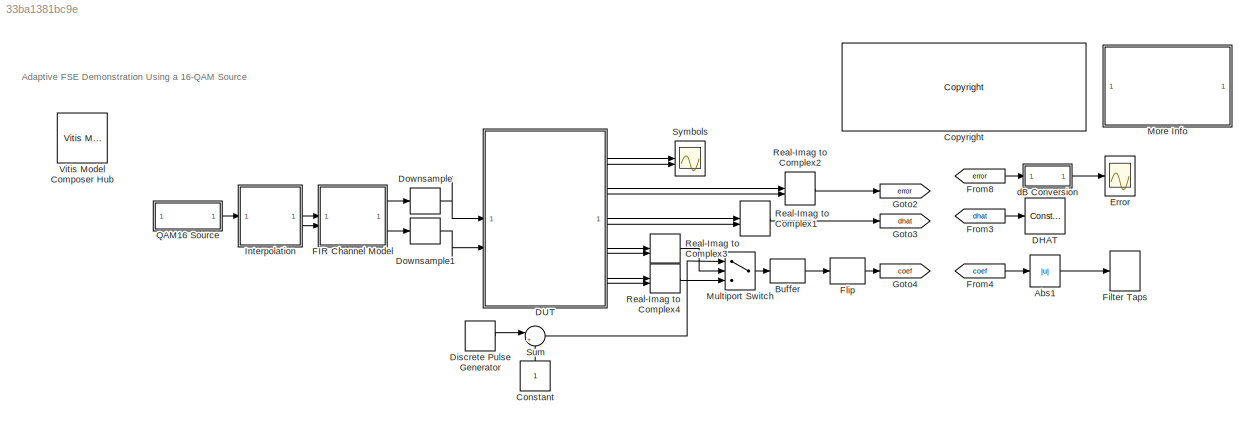
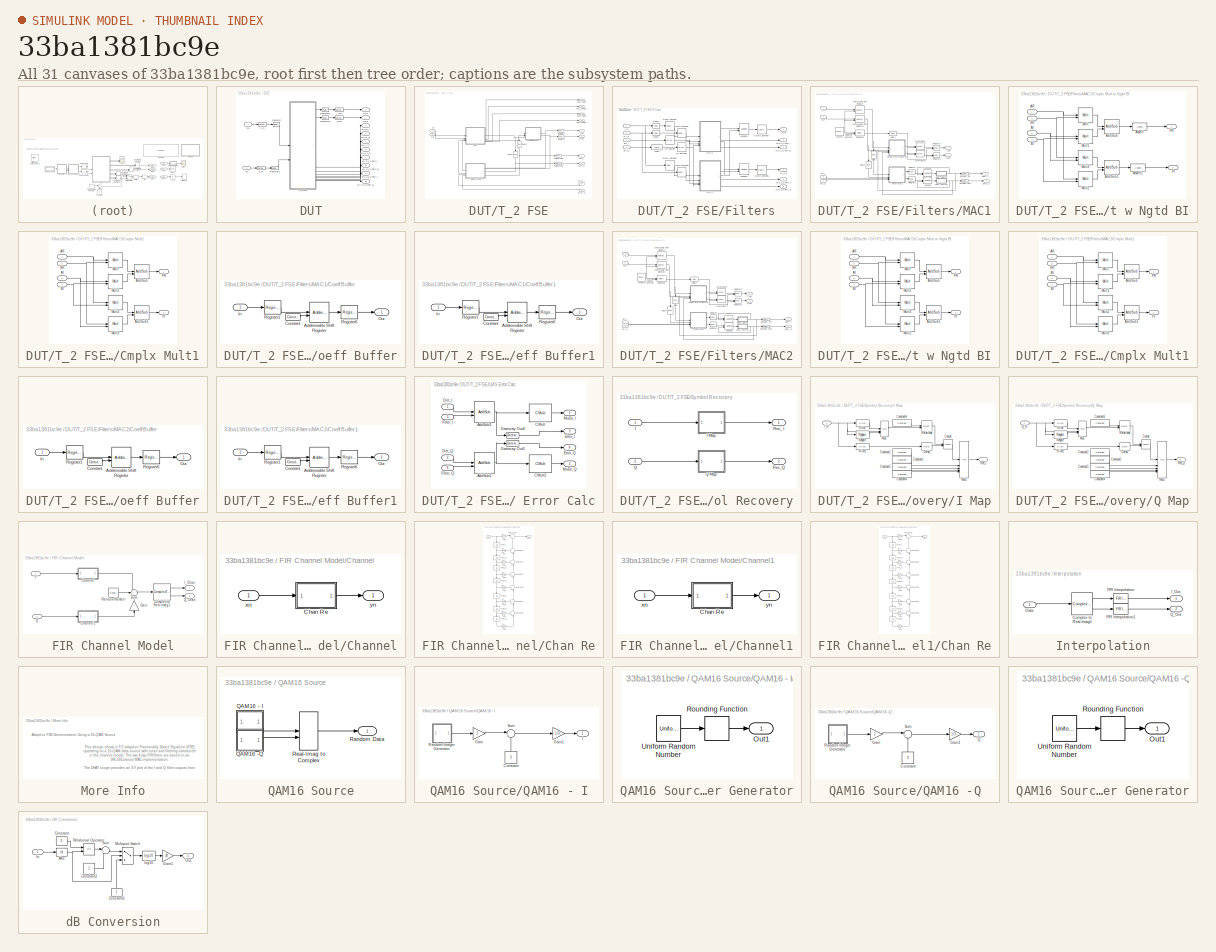
[diagram: thumbnail index - all 31 canvases of the model, root first then tree order]
MODEL slx_33ba1381bc9e
KIND model
CONFIG AbsTol = auto
CONFIG EnableMultiTasking = on
CONFIG FixedStep = auto
CONFIG MaxStep = auto
CONFIG MinStep = auto
CONFIG PreLoadFcn = FSE_PreLoadFcn
CONFIG RelTol = 1e-3
CONFIG SampleTimeConstraint = Unconstrained
CONFIG SolverName = ode45
CONFIG StartTime = 0.0
CONFIG StopTime = 2e3
BLOCK [Abs] Abs1
BLOCK [Buffer] Buffer
  N = 8
BLOCK [Constant] Constant
  NameLocation = right
BLOCK [Reference] <copyright redacted>
  SourceBlock = hdlUtilities/<copyright redacted>
  SourceType = Xilinx <copyright redacted>
BLOCK [ConstellationDiagram] DHAT
  DefaultConfigurationName = comm.scopes.ConstellationDiagramBlockCfg
  GraphicalSettings = {"GraphicalSettings":{"Style":{"AuxLineProperties":"struct","AxesProperties":"struct","Color":"[1 1 0.0666666666666667]","CurrentConfiguration":"extmgr.ConfigurationSet","GrReferenceConstellation":"16-QAM","LineColor":"[1 1 0.0666666666666667]","LineProperties":"struct","LineStyle":"-","LineWidth":"0.5","Marker":".","MarkerEdgeColor":"auto","MarkerFaceColor":"none","MarkerSize":"6","MaxXLim":"1.82...<+751ch>
  ReferenceConstellation = 16-QAM
  ScopeFrameLocation = window
  ScopeSpecificationString = comm.scopes.ConstellationDiagramBlockCfg('CurrentConfiguration', extmgr.ConfigurationSet(extmgr.Configuration('Core','General UI',true),extmgr.Configuration('Core','Source UI',true),extmgr.Configuration('Sources','WiredSimulink',true),extmgr.Configuration('Sources','Simulink',false),extmgr.Configuration('Sources','SPTool',false),extmgr.Configuration('Sources','Workspace',false),extmgr.Configuratio...<+1896ch>
  SymbolsToDisplay = 1000
  SymbolsToDisplaySource = Property
  Visible = on
  WasSavedAsWebScope = on
  WindowPosition = [155.000000,126.000000,480.000000,338.000000,]
  XLimits = [-1.8505 1.828]
  YLimits = [-1.8505 1.828]
BLOCK [SubSystem] DUT
BLOCK [Outport] DUT/DHAT_I
  Port = 5
BLOCK [Outport] DUT/DHAT_Q
  Port = 6
BLOCK [Outport] DUT/Error_I
  Port = 3
BLOCK [Outport] DUT/Error_Q
  Port = 4
BLOCK [Inport] DUT/In1
BLOCK [Inport] DUT/In2
  Port = 2
BLOCK [Outport] DUT/MAC1_Coeff_I
  Port = 7
BLOCK [Outport] DUT/MAC1_Coeff_Q
  Port = 8
BLOCK [Outport] DUT/MAC2_Coeff_I
  Port = 9
BLOCK [Outport] DUT/MAC2_Coeff_Q
  Port = 10
BLOCK [Outport] DUT/Out1
BLOCK [Outport] DUT/Out2
  Port = 2
BLOCK [Reference] DUT/Register  REF=hdlBasic/Register
  SourceBlock = hdlBasic/Register
  SourceType = Register Block
BLOCK [Reference] DUT/Register1  REF=hdlBasic/Register
  SourceBlock = hdlBasic/Register
  SourceType = Register Block
BLOCK [Reference] DUT/Register2  REF=hdlBasic/Register
  SourceBlock = hdlBasic/Register
  SourceType = Register Block
BLOCK [Reference] DUT/Register3  REF=hdlBasic/Register
  SourceBlock = hdlBasic/Register
  SourceType = Register Block
BLOCK [SubSystem] DUT/T_2 FSE
BLOCK [Outport] DUT/T_2 FSE/DHAT_I
  Port = 5
  VectorParamsAs1DForOutWhenUnconnected = off
BLOCK [Outport] DUT/T_2 FSE/DHAT_Q
  Port = 6
  VectorParamsAs1DForOutWhenUnconnected = off
BLOCK [Reference] DUT/T_2 FSE/Delay1  REF=hdlBasic/Delay
  NameLocation = left
  SourceBlock = hdlBasic/Delay
  SourceType = Delay Block
BLOCK [Reference] DUT/T_2 FSE/Delay2  REF=hdlBasic/Delay
  NameLocation = left
  SourceBlock = hdlBasic/Delay
  SourceType = Delay Block
BLOCK [Outport] DUT/T_2 FSE/Error_I
  NameLocation = top
  Port = 3
  VectorParamsAs1DForOutWhenUnconnected = off
BLOCK [Outport] DUT/T_2 FSE/Error_Q
  NameLocation = top
  Port = 4
  VectorParamsAs1DForOutWhenUnconnected = off
BLOCK [SubSystem] DUT/T_2 FSE/Filters
BLOCK [Reference] DUT/T_2 FSE/Filters/AddSub1  REF=hdlBasic/AddSub
  SourceBlock = hdlBasic/AddSub
  SourceType = Adder/Subtracter Block
BLOCK [Reference] DUT/T_2 FSE/Filters/AddSub3  REF=hdlBasic/AddSub
  SourceBlock = hdlBasic/AddSub
  SourceType = Adder/Subtracter Block
BLOCK [Reference] DUT/T_2 FSE/Filters/Assert  REF=hdlBasic/Assert
  SourceBlock = hdlBasic/Assert
  SourceType = Assert Block
BLOCK [Reference] DUT/T_2 FSE/Filters/Delay1  REF=hdlBasic/Delay
  NameLocation = top
  SourceBlock = hdlBasic/Delay
  SourceType = Delay Block
BLOCK [Reference] DUT/T_2 FSE/Filters/Delay2  REF=hdlBasic/Delay
  NameLocation = top
  SourceBlock = hdlBasic/Delay
  SourceType = Delay Block
BLOCK [Reference] DUT/T_2 FSE/Filters/Down Sample  REF=hdlBasic/Down Sample
  SourceBlock = hdlBasic/Down Sample
  SourceType = Down Sampler Block
BLOCK [Reference] DUT/T_2 FSE/Filters/Down Sample1  REF=hdlBasic/Down Sample
  SourceBlock = hdlBasic/Down Sample
  SourceType = Down Sampler Block
BLOCK [Reference] DUT/T_2 FSE/Filters/Down Sample2  REF=hdlBasic/Down Sample
  SourceBlock = hdlBasic/Down Sample
  SourceType = Down Sampler Block
BLOCK [Reference] DUT/T_2 FSE/Filters/Down Sample3  REF=hdlBasic/Down Sample
  SourceBlock = hdlBasic/Down Sample
  SourceType = Down Sampler Block
BLOCK [Reference] DUT/T_2 FSE/Filters/Down Sample4  REF=hdlBasic/Down Sample
  SourceBlock = hdlBasic/Down Sample
  SourceType = Down Sampler Block
BLOCK [Reference] DUT/T_2 FSE/Filters/Down Sample5  REF=hdlBasic/Down Sample
  SourceBlock = hdlBasic/Down Sample
  SourceType = Down Sampler Block
BLOCK [Inport] DUT/T_2 FSE/Filters/Err_I
  NameLocation = top
  Port = 3
BLOCK [Inport] DUT/T_2 FSE/Filters/Err_Q
  NameLocation = top
  Port = 4
BLOCK [Inport] DUT/T_2 FSE/Filters/I_In
  NameLocation = top
BLOCK [Outport] DUT/T_2 FSE/Filters/I_Out
  VectorParamsAs1DForOutWhenUnconnected = off
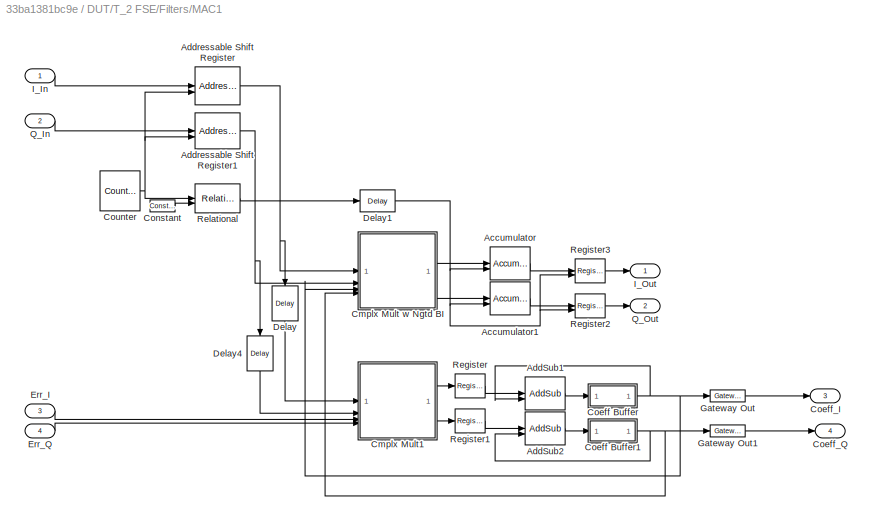
BLOCK [SubSystem] DUT/T_2 FSE/Filters/MAC1
BLOCK [Reference] DUT/T_2 FSE/Filters/MAC1/Accumulator  REF=hdlBasic/Accumulator
  SourceBlock = hdlBasic/Accumulator
  SourceType = Accumulator Block
BLOCK [Reference] DUT/T_2 FSE/Filters/MAC1/Accumulator1  REF=hdlBasic/Accumulator
  SourceBlock = hdlBasic/Accumulator
  SourceType = Accumulator Block
BLOCK [Reference] DUT/T_2 FSE/Filters/MAC1/AddSub1  REF=hdlBasic/AddSub
  NameLocation = top
  SourceBlock = hdlBasic/AddSub
  SourceType = Adder/Subtracter Block
BLOCK [Reference] DUT/T_2 FSE/Filters/MAC1/AddSub2  REF=hdlBasic/AddSub
  NameLocation = top
  SourceBlock = hdlBasic/AddSub
  SourceType = Adder/Subtracter Block
BLOCK [Reference] DUT/T_2 FSE/Filters/MAC1/Addressable Shift Register  REF=hdlBasic/Addressable Shift Register
  SourceBlock = hdlBasic/Addressable Shift Register
  SourceType = Addressable Shift Register Block
BLOCK [Reference] DUT/T_2 FSE/Filters/MAC1/Addressable Shift Register1  REF=hdlBasic/Addressable Shift Register
  SourceBlock = hdlBasic/Addressable Shift Register
  SourceType = Addressable Shift Register Block
BLOCK [SubSystem] DUT/T_2 FSE/Filters/MAC1/Cmplx Mult w Ngtd BI
BLOCK [Inport] DUT/T_2 FSE/Filters/MAC1/Cmplx Mult w Ngtd BI/AI
  NameLocation = top
  Port = 2
BLOCK [Inport] DUT/T_2 FSE/Filters/MAC1/Cmplx Mult w Ngtd BI/AR
  NameLocation = top
BLOCK [Reference] DUT/T_2 FSE/Filters/MAC1/Cmplx Mult w Ngtd BI/AddSub  REF=hdlBasic/AddSub
  SourceBlock = hdlBasic/AddSub
  SourceType = Adder/Subtracter Block
BLOCK [Reference] DUT/T_2 FSE/Filters/MAC1/Cmplx Mult w Ngtd BI/AddSub1  REF=hdlBasic/AddSub
  SourceBlock = hdlBasic/AddSub
  SourceType = Adder/Subtracter Block
BLOCK [Reference] DUT/T_2 FSE/Filters/MAC1/Cmplx Mult w Ngtd BI/Assert  REF=hdlBasic/Assert
  SourceBlock = hdlBasic/Assert
  SourceType = Assert Block
BLOCK [Reference] DUT/T_2 FSE/Filters/MAC1/Cmplx Mult w Ngtd BI/Assert1  REF=hdlBasic/Assert
  SourceBlock = hdlBasic/Assert
  SourceType = Assert Block
BLOCK [Inport] DUT/T_2 FSE/Filters/MAC1/Cmplx Mult w Ngtd BI/BI
  Port = 4
BLOCK [Inport] DUT/T_2 FSE/Filters/MAC1/Cmplx Mult w Ngtd BI/BR
  Port = 3
BLOCK [Reference] DUT/T_2 FSE/Filters/MAC1/Cmplx Mult w Ngtd BI/Mult  REF=hdlBasic/Mult
  SourceBlock = hdlBasic/Mult
  SourceType = Multiplier Block
BLOCK [Reference] DUT/T_2 FSE/Filters/MAC1/Cmplx Mult w Ngtd BI/Mult1  REF=hdlBasic/Mult
  SourceBlock = hdlBasic/Mult
  SourceType = Multiplier Block
BLOCK [Reference] DUT/T_2 FSE/Filters/MAC1/Cmplx Mult w Ngtd BI/Mult2  REF=hdlBasic/Mult
  SourceBlock = hdlBasic/Mult
  SourceType = Multiplier Block
BLOCK [Reference] DUT/T_2 FSE/Filters/MAC1/Cmplx Mult w Ngtd BI/Mult3  REF=hdlBasic/Mult
  SourceBlock = hdlBasic/Mult
  SourceType = Multiplier Block
BLOCK [Outport] DUT/T_2 FSE/Filters/MAC1/Cmplx Mult w Ngtd BI/PI
  Port = 2
  VectorParamsAs1DForOutWhenUnconnected = off
BLOCK [Outport] DUT/T_2 FSE/Filters/MAC1/Cmplx Mult w Ngtd BI/PR
  VectorParamsAs1DForOutWhenUnconnected = off
BLOCK [SubSystem] DUT/T_2 FSE/Filters/MAC1/Cmplx Mult1
BLOCK [Inport] DUT/T_2 FSE/Filters/MAC1/Cmplx Mult1/AI
  NameLocation = top
  Port = 2
BLOCK [Inport] DUT/T_2 FSE/Filters/MAC1/Cmplx Mult1/AR
  NameLocation = top
BLOCK [Reference] DUT/T_2 FSE/Filters/MAC1/Cmplx Mult1/AddSub  REF=hdlBasic/AddSub
  SourceBlock = hdlBasic/AddSub
  SourceType = Adder/Subtracter Block
BLOCK [Reference] DUT/T_2 FSE/Filters/MAC1/Cmplx Mult1/AddSub1  REF=hdlBasic/AddSub
  SourceBlock = hdlBasic/AddSub
  SourceType = Adder/Subtracter Block
BLOCK [Inport] DUT/T_2 FSE/Filters/MAC1/Cmplx Mult1/BI
  Port = 4
BLOCK [Inport] DUT/T_2 FSE/Filters/MAC1/Cmplx Mult1/BR
  Port = 3
BLOCK [Reference] DUT/T_2 FSE/Filters/MAC1/Cmplx Mult1/Mult  REF=hdlBasic/Mult
  SourceBlock = hdlBasic/Mult
  SourceType = Multiplier Block
BLOCK [Reference] DUT/T_2 FSE/Filters/MAC1/Cmplx Mult1/Mult1  REF=hdlBasic/Mult
  SourceBlock = hdlBasic/Mult
  SourceType = Multiplier Block
BLOCK [Reference] DUT/T_2 FSE/Filters/MAC1/Cmplx Mult1/Mult2  REF=hdlBasic/Mult
  SourceBlock = hdlBasic/Mult
  SourceType = Multiplier Block
BLOCK [Reference] DUT/T_2 FSE/Filters/MAC1/Cmplx Mult1/Mult3  REF=hdlBasic/Mult
  SourceBlock = hdlBasic/Mult
  SourceType = Multiplier Block
BLOCK [Outport] DUT/T_2 FSE/Filters/MAC1/Cmplx Mult1/PI
  Port = 2
  VectorParamsAs1DForOutWhenUnconnected = off
BLOCK [Outport] DUT/T_2 FSE/Filters/MAC1/Cmplx Mult1/PR
  VectorParamsAs1DForOutWhenUnconnected = off
BLOCK [SubSystem] DUT/T_2 FSE/Filters/MAC1/Coeff Buffer
BLOCK [Reference] DUT/T_2 FSE/Filters/MAC1/Coeff Buffer/Addressable Shift Register  REF=hdlBasic/Addressable Shift Register
  SourceBlock = hdlBasic/Addressable Shift Register
  SourceType = Addressable Shift Register Block
BLOCK [Reference] DUT/T_2 FSE/Filters/MAC1/Coeff Buffer/Constant  REF=hdlBasic/Constant
  SourceBlock = hdlBasic/Constant
  SourceType = Constant Block Block
BLOCK [Inport] DUT/T_2 FSE/Filters/MAC1/Coeff Buffer/In
BLOCK [Outport] DUT/T_2 FSE/Filters/MAC1/Coeff Buffer/Out
  VectorParamsAs1DForOutWhenUnconnected = off
BLOCK [Reference] DUT/T_2 FSE/Filters/MAC1/Coeff Buffer/Register1  REF=hdlBasic/Register
  SourceBlock = hdlBasic/Register
  SourceType = Register Block
BLOCK [Reference] DUT/T_2 FSE/Filters/MAC1/Coeff Buffer/Register6  REF=hdlBasic/Register
  SourceBlock = hdlBasic/Register
  SourceType = Register Block
BLOCK [SubSystem] DUT/T_2 FSE/Filters/MAC1/Coeff Buffer1
BLOCK [Reference] DUT/T_2 FSE/Filters/MAC1/Coeff Buffer1/Addressable Shift Register  REF=hdlBasic/Addressable Shift Register
  SourceBlock = hdlBasic/Addressable Shift Register
  SourceType = Addressable Shift Register Block
BLOCK [Reference] DUT/T_2 FSE/Filters/MAC1/Coeff Buffer1/Constant  REF=hdlBasic/Constant
  SourceBlock = hdlBasic/Constant
  SourceType = Constant Block Block
BLOCK [Inport] DUT/T_2 FSE/Filters/MAC1/Coeff Buffer1/In
BLOCK [Outport] DUT/T_2 FSE/Filters/MAC1/Coeff Buffer1/Out
  VectorParamsAs1DForOutWhenUnconnected = off
BLOCK [Reference] DUT/T_2 FSE/Filters/MAC1/Coeff Buffer1/Register1  REF=hdlBasic/Register
  SourceBlock = hdlBasic/Register
  SourceType = Register Block
BLOCK [Reference] DUT/T_2 FSE/Filters/MAC1/Coeff Buffer1/Register6  REF=hdlBasic/Register
  SourceBlock = hdlBasic/Register
  SourceType = Register Block
BLOCK [Outport] DUT/T_2 FSE/Filters/MAC1/Coeff_I
  Port = 3
  VectorParamsAs1DForOutWhenUnconnected = off
BLOCK [Outport] DUT/T_2 FSE/Filters/MAC1/Coeff_Q
  Port = 4
  VectorParamsAs1DForOutWhenUnconnected = off
BLOCK [Reference] DUT/T_2 FSE/Filters/MAC1/Constant  REF=hdlBasic/Constant
  SourceBlock = hdlBasic/Constant
  SourceType = Constant Block Block
BLOCK [Reference] DUT/T_2 FSE/Filters/MAC1/Counter  REF=hdlBasic/Counter
  SourceBlock = hdlBasic/Counter
  SourceType = Counter Block
BLOCK [Reference] DUT/T_2 FSE/Filters/MAC1/Delay  REF=hdlBasic/Delay
  NameLocation = left
  SourceBlock = hdlBasic/Delay
  SourceType = Delay Block
BLOCK [Reference] DUT/T_2 FSE/Filters/MAC1/Delay1  REF=hdlBasic/Delay
  SourceBlock = hdlBasic/Delay
  SourceType = Delay Block
BLOCK [Reference] DUT/T_2 FSE/Filters/MAC1/Delay4  REF=hdlBasic/Delay
  NameLocation = left
  SourceBlock = hdlBasic/Delay
  SourceType = Delay Block
BLOCK [Inport] DUT/T_2 FSE/Filters/MAC1/Err_I
  NameLocation = top
  Port = 3
BLOCK [Inport] DUT/T_2 FSE/Filters/MAC1/Err_Q
  Port = 4
BLOCK [Reference] DUT/T_2 FSE/Filters/MAC1/Gateway Out  REF=hdlBasic/Gateway Out
  SourceBlock = hdlBasic/Gateway Out
  SourceType = Gateway Out Block
BLOCK [Reference] DUT/T_2 FSE/Filters/MAC1/Gateway Out1  REF=hdlBasic/Gateway Out
  SourceBlock = hdlBasic/Gateway Out
  SourceType = Gateway Out Block
BLOCK [Inport] DUT/T_2 FSE/Filters/MAC1/I_In
BLOCK [Outport] DUT/T_2 FSE/Filters/MAC1/I_Out
  VectorParamsAs1DForOutWhenUnconnected = off
BLOCK [Inport] DUT/T_2 FSE/Filters/MAC1/Q_In
  Port = 2
BLOCK [Outport] DUT/T_2 FSE/Filters/MAC1/Q_Out
  Port = 2
  VectorParamsAs1DForOutWhenUnconnected = off
BLOCK [Reference] DUT/T_2 FSE/Filters/MAC1/Register  REF=hdlBasic/Register
  SourceBlock = hdlBasic/Register
  SourceType = Register Block
BLOCK [Reference] DUT/T_2 FSE/Filters/MAC1/Register1  REF=hdlBasic/Register
  SourceBlock = hdlBasic/Register
  SourceType = Register Block
BLOCK [Reference] DUT/T_2 FSE/Filters/MAC1/Register2  REF=hdlBasic/Register
  SourceBlock = hdlBasic/Register
  SourceType = Register Block
BLOCK [Reference] DUT/T_2 FSE/Filters/MAC1/Register3  REF=hdlBasic/Register
  SourceBlock = hdlBasic/Register
  SourceType = Register Block
BLOCK [Reference] DUT/T_2 FSE/Filters/MAC1/Relational  REF=hdlBasic/Relational
  SourceBlock = hdlBasic/Relational
  SourceType = Arithmetic Relational Operator Block
BLOCK [Outport] DUT/T_2 FSE/Filters/MAC1_Coeff_I
  Port = 2
  VectorParamsAs1DForOutWhenUnconnected = off
BLOCK [Outport] DUT/T_2 FSE/Filters/MAC1_Coeff_Q
  Port = 3
  VectorParamsAs1DForOutWhenUnconnected = off
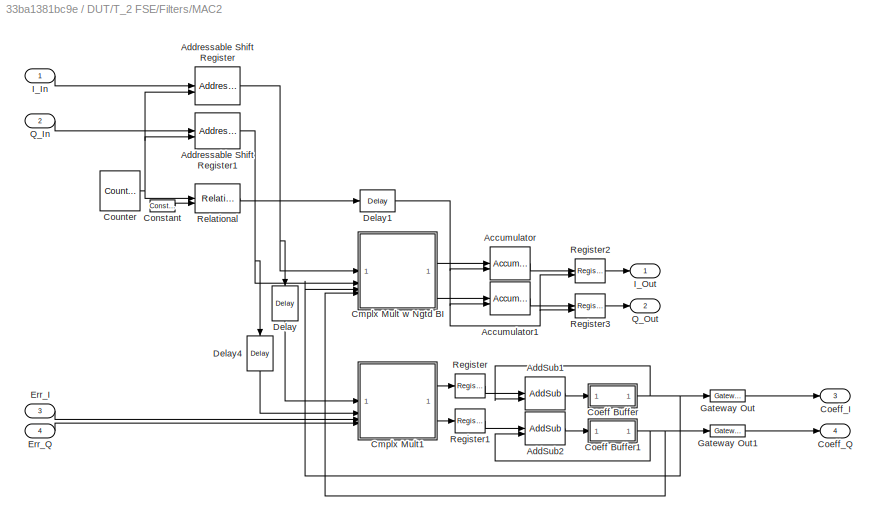
BLOCK [SubSystem] DUT/T_2 FSE/Filters/MAC2
BLOCK [Reference] DUT/T_2 FSE/Filters/MAC2/Accumulator  REF=hdlBasic/Accumulator
  SourceBlock = hdlBasic/Accumulator
  SourceType = Accumulator Block
BLOCK [Reference] DUT/T_2 FSE/Filters/MAC2/Accumulator1  REF=hdlBasic/Accumulator
  SourceBlock = hdlBasic/Accumulator
  SourceType = Accumulator Block
BLOCK [Reference] DUT/T_2 FSE/Filters/MAC2/AddSub1  REF=hdlBasic/AddSub
  NameLocation = top
  SourceBlock = hdlBasic/AddSub
  SourceType = Adder/Subtracter Block
BLOCK [Reference] DUT/T_2 FSE/Filters/MAC2/AddSub2  REF=hdlBasic/AddSub
  NameLocation = top
  SourceBlock = hdlBasic/AddSub
  SourceType = Adder/Subtracter Block
BLOCK [Reference] DUT/T_2 FSE/Filters/MAC2/Addressable Shift Register  REF=hdlBasic/Addressable Shift Register
  SourceBlock = hdlBasic/Addressable Shift Register
  SourceType = Addressable Shift Register Block
BLOCK [Reference] DUT/T_2 FSE/Filters/MAC2/Addressable Shift Register1  REF=hdlBasic/Addressable Shift Register
  SourceBlock = hdlBasic/Addressable Shift Register
  SourceType = Addressable Shift Register Block
BLOCK [SubSystem] DUT/T_2 FSE/Filters/MAC2/Cmplx Mult w Ngtd BI
BLOCK [Inport] DUT/T_2 FSE/Filters/MAC2/Cmplx Mult w Ngtd BI/AI
  NameLocation = top
  Port = 2
BLOCK [Inport] DUT/T_2 FSE/Filters/MAC2/Cmplx Mult w Ngtd BI/AR
  NameLocation = top
BLOCK [Reference] DUT/T_2 FSE/Filters/MAC2/Cmplx Mult w Ngtd BI/AddSub  REF=hdlBasic/AddSub
  SourceBlock = hdlBasic/AddSub
  SourceType = Adder/Subtracter Block
BLOCK [Reference] DUT/T_2 FSE/Filters/MAC2/Cmplx Mult w Ngtd BI/AddSub1  REF=hdlBasic/AddSub
  SourceBlock = hdlBasic/AddSub
  SourceType = Adder/Subtracter Block
BLOCK [Inport] DUT/T_2 FSE/Filters/MAC2/Cmplx Mult w Ngtd BI/BI
  Port = 4
BLOCK [Inport] DUT/T_2 FSE/Filters/MAC2/Cmplx Mult w Ngtd BI/BR
  Port = 3
BLOCK [Reference] DUT/T_2 FSE/Filters/MAC2/Cmplx Mult w Ngtd BI/Mult  REF=hdlBasic/Mult
  SourceBlock = hdlBasic/Mult
  SourceType = Multiplier Block
BLOCK [Reference] DUT/T_2 FSE/Filters/MAC2/Cmplx Mult w Ngtd BI/Mult1  REF=hdlBasic/Mult
  SourceBlock = hdlBasic/Mult
  SourceType = Multiplier Block
BLOCK [Reference] DUT/T_2 FSE/Filters/MAC2/Cmplx Mult w Ngtd BI/Mult2  REF=hdlBasic/Mult
  SourceBlock = hdlBasic/Mult
  SourceType = Multiplier Block
BLOCK [Reference] DUT/T_2 FSE/Filters/MAC2/Cmplx Mult w Ngtd BI/Mult3  REF=hdlBasic/Mult
  SourceBlock = hdlBasic/Mult
  SourceType = Multiplier Block
BLOCK [Outport] DUT/T_2 FSE/Filters/MAC2/Cmplx Mult w Ngtd BI/PI
  Port = 2
  VectorParamsAs1DForOutWhenUnconnected = off
BLOCK [Outport] DUT/T_2 FSE/Filters/MAC2/Cmplx Mult w Ngtd BI/PR
  VectorParamsAs1DForOutWhenUnconnected = off
BLOCK [SubSystem] DUT/T_2 FSE/Filters/MAC2/Cmplx Mult1
BLOCK [Inport] DUT/T_2 FSE/Filters/MAC2/Cmplx Mult1/AI
  NameLocation = top
  Port = 2
BLOCK [Inport] DUT/T_2 FSE/Filters/MAC2/Cmplx Mult1/AR
  NameLocation = top
BLOCK [Reference] DUT/T_2 FSE/Filters/MAC2/Cmplx Mult1/AddSub  REF=hdlBasic/AddSub
  SourceBlock = hdlBasic/AddSub
  SourceType = Adder/Subtracter Block
BLOCK [Reference] DUT/T_2 FSE/Filters/MAC2/Cmplx Mult1/AddSub1  REF=hdlBasic/AddSub
  SourceBlock = hdlBasic/AddSub
  SourceType = Adder/Subtracter Block
BLOCK [Inport] DUT/T_2 FSE/Filters/MAC2/Cmplx Mult1/BI
  Port = 4
BLOCK [Inport] DUT/T_2 FSE/Filters/MAC2/Cmplx Mult1/BR
  Port = 3
BLOCK [Reference] DUT/T_2 FSE/Filters/MAC2/Cmplx Mult1/Mult  REF=hdlBasic/Mult
  SourceBlock = hdlBasic/Mult
  SourceType = Multiplier Block
BLOCK [Reference] DUT/T_2 FSE/Filters/MAC2/Cmplx Mult1/Mult1  REF=hdlBasic/Mult
  SourceBlock = hdlBasic/Mult
  SourceType = Multiplier Block
BLOCK [Reference] DUT/T_2 FSE/Filters/MAC2/Cmplx Mult1/Mult2  REF=hdlBasic/Mult
  SourceBlock = hdlBasic/Mult
  SourceType = Multiplier Block
BLOCK [Reference] DUT/T_2 FSE/Filters/MAC2/Cmplx Mult1/Mult3  REF=hdlBasic/Mult
  SourceBlock = hdlBasic/Mult
  SourceType = Multiplier Block
BLOCK [Outport] DUT/T_2 FSE/Filters/MAC2/Cmplx Mult1/PI
  Port = 2
  VectorParamsAs1DForOutWhenUnconnected = off
BLOCK [Outport] DUT/T_2 FSE/Filters/MAC2/Cmplx Mult1/PR
  VectorParamsAs1DForOutWhenUnconnected = off
BLOCK [SubSystem] DUT/T_2 FSE/Filters/MAC2/Coeff Buffer
BLOCK [Reference] DUT/T_2 FSE/Filters/MAC2/Coeff Buffer/Addressable Shift Register  REF=hdlBasic/Addressable Shift Register
  SourceBlock = hdlBasic/Addressable Shift Register
  SourceType = Addressable Shift Register Block
BLOCK [Reference] DUT/T_2 FSE/Filters/MAC2/Coeff Buffer/Constant  REF=hdlBasic/Constant
  SourceBlock = hdlBasic/Constant
  SourceType = Constant Block Block
BLOCK [Inport] DUT/T_2 FSE/Filters/MAC2/Coeff Buffer/In
BLOCK [Outport] DUT/T_2 FSE/Filters/MAC2/Coeff Buffer/Out
  VectorParamsAs1DForOutWhenUnconnected = off
BLOCK [Reference] DUT/T_2 FSE/Filters/MAC2/Coeff Buffer/Register1  REF=hdlBasic/Register
  SourceBlock = hdlBasic/Register
  SourceType = Register Block
BLOCK [Reference] DUT/T_2 FSE/Filters/MAC2/Coeff Buffer/Register6  REF=hdlBasic/Register
  SourceBlock = hdlBasic/Register
  SourceType = Register Block
BLOCK [SubSystem] DUT/T_2 FSE/Filters/MAC2/Coeff Buffer1
BLOCK [Reference] DUT/T_2 FSE/Filters/MAC2/Coeff Buffer1/Addressable Shift Register  REF=hdlBasic/Addressable Shift Register
  SourceBlock = hdlBasic/Addressable Shift Register
  SourceType = Addressable Shift Register Block
BLOCK [Reference] DUT/T_2 FSE/Filters/MAC2/Coeff Buffer1/Constant  REF=hdlBasic/Constant
  SourceBlock = hdlBasic/Constant
  SourceType = Constant Block Block
BLOCK [Inport] DUT/T_2 FSE/Filters/MAC2/Coeff Buffer1/In
BLOCK [Outport] DUT/T_2 FSE/Filters/MAC2/Coeff Buffer1/Out
  VectorParamsAs1DForOutWhenUnconnected = off
BLOCK [Reference] DUT/T_2 FSE/Filters/MAC2/Coeff Buffer1/Register1  REF=hdlBasic/Register
  SourceBlock = hdlBasic/Register
  SourceType = Register Block
BLOCK [Reference] DUT/T_2 FSE/Filters/MAC2/Coeff Buffer1/Register6  REF=hdlBasic/Register
  SourceBlock = hdlBasic/Register
  SourceType = Register Block
BLOCK [Outport] DUT/T_2 FSE/Filters/MAC2/Coeff_I
  Port = 3
  VectorParamsAs1DForOutWhenUnconnected = off
BLOCK [Outport] DUT/T_2 FSE/Filters/MAC2/Coeff_Q
  Port = 4
  VectorParamsAs1DForOutWhenUnconnected = off
BLOCK [Reference] DUT/T_2 FSE/Filters/MAC2/Constant  REF=hdlBasic/Constant
  SourceBlock = hdlBasic/Constant
  SourceType = Constant Block Block
BLOCK [Reference] DUT/T_2 FSE/Filters/MAC2/Counter  REF=hdlBasic/Counter
  SourceBlock = hdlBasic/Counter
  SourceType = Counter Block
BLOCK [Reference] DUT/T_2 FSE/Filters/MAC2/Delay  REF=hdlBasic/Delay
  NameLocation = left
  SourceBlock = hdlBasic/Delay
  SourceType = Delay Block
BLOCK [Reference] DUT/T_2 FSE/Filters/MAC2/Delay1  REF=hdlBasic/Delay
  SourceBlock = hdlBasic/Delay
  SourceType = Delay Block
BLOCK [Reference] DUT/T_2 FSE/Filters/MAC2/Delay4  REF=hdlBasic/Delay
  NameLocation = left
  SourceBlock = hdlBasic/Delay
  SourceType = Delay Block
BLOCK [Inport] DUT/T_2 FSE/Filters/MAC2/Err_I
  NameLocation = top
  Port = 3
BLOCK [Inport] DUT/T_2 FSE/Filters/MAC2/Err_Q
  Port = 4
BLOCK [Reference] DUT/T_2 FSE/Filters/MAC2/Gateway Out  REF=hdlBasic/Gateway Out
  SourceBlock = hdlBasic/Gateway Out
  SourceType = Gateway Out Block
BLOCK [Reference] DUT/T_2 FSE/Filters/MAC2/Gateway Out1  REF=hdlBasic/Gateway Out
  SourceBlock = hdlBasic/Gateway Out
  SourceType = Gateway Out Block
BLOCK [Inport] DUT/T_2 FSE/Filters/MAC2/I_In
BLOCK [Outport] DUT/T_2 FSE/Filters/MAC2/I_Out
  VectorParamsAs1DForOutWhenUnconnected = off
BLOCK [Inport] DUT/T_2 FSE/Filters/MAC2/Q_In
  Port = 2
BLOCK [Outport] DUT/T_2 FSE/Filters/MAC2/Q_Out
  Port = 2
  VectorParamsAs1DForOutWhenUnconnected = off
BLOCK [Reference] DUT/T_2 FSE/Filters/MAC2/Register  REF=hdlBasic/Register
  SourceBlock = hdlBasic/Register
  SourceType = Register Block
BLOCK [Reference] DUT/T_2 FSE/Filters/MAC2/Register1  REF=hdlBasic/Register
  SourceBlock = hdlBasic/Register
  SourceType = Register Block
BLOCK [Reference] DUT/T_2 FSE/Filters/MAC2/Register2  REF=hdlBasic/Register
  SourceBlock = hdlBasic/Register
  SourceType = Register Block
BLOCK [Reference] DUT/T_2 FSE/Filters/MAC2/Register3  REF=hdlBasic/Register
  SourceBlock = hdlBasic/Register
  SourceType = Register Block
BLOCK [Reference] DUT/T_2 FSE/Filters/MAC2/Relational  REF=hdlBasic/Relational
  SourceBlock = hdlBasic/Relational
  SourceType = Arithmetic Relational Operator Block
BLOCK [Outport] DUT/T_2 FSE/Filters/MAC2_Coeff_I
  Port = 5
  VectorParamsAs1DForOutWhenUnconnected = off
BLOCK [Outport] DUT/T_2 FSE/Filters/MAC2_Coeff_Q
  Port = 6
  VectorParamsAs1DForOutWhenUnconnected = off
BLOCK [Inport] DUT/T_2 FSE/Filters/Q_In
  NameLocation = top
  Port = 2
BLOCK [Outport] DUT/T_2 FSE/Filters/Q_Out
  Port = 4
  VectorParamsAs1DForOutWhenUnconnected = off
BLOCK [Reference] DUT/T_2 FSE/Filters/Up Sample  REF=hdlBasic/Up Sample
  SourceBlock = hdlBasic/Up Sample
  SourceType = Up Sampler Block
BLOCK [Reference] DUT/T_2 FSE/Filters/Up Sample1  REF=hdlBasic/Up Sample
  SourceBlock = hdlBasic/Up Sample
  SourceType = Up Sampler Block
BLOCK [Reference] DUT/T_2 FSE/Gateway Out1  REF=hdlBasic/Gateway Out
  SourceBlock = hdlBasic/Gateway Out
  SourceType = Gateway Out Block
BLOCK [Reference] DUT/T_2 FSE/Gateway Out2  REF=hdlBasic/Gateway Out
  SourceBlock = hdlBasic/Gateway Out
  SourceType = Gateway Out Block
BLOCK [Inport] DUT/T_2 FSE/I_In
  NameLocation = top
BLOCK [Outport] DUT/T_2 FSE/I_Out
  NameLocation = top
  VectorParamsAs1DForOutWhenUnconnected = off
BLOCK [SubSystem] DUT/T_2 FSE/LMS Error Calc
BLOCK [Reference] DUT/T_2 FSE/LMS Error Calc/AddSub1  REF=hdlBasic/AddSub
  SourceBlock = hdlBasic/AddSub
  SourceType = Adder/Subtracter Block
BLOCK [Reference] DUT/T_2 FSE/LMS Error Calc/AddSub3  REF=hdlBasic/AddSub
  SourceBlock = hdlBasic/AddSub
  SourceType = Adder/Subtracter Block
BLOCK [Reference] DUT/T_2 FSE/LMS Error Calc/CMult  REF=hdlBasic/CMult
  SourceBlock = hdlBasic/CMult
  SourceType = Constant Multiplier Block
BLOCK [Reference] DUT/T_2 FSE/LMS Error Calc/CMult2  REF=hdlBasic/CMult
  SourceBlock = hdlBasic/CMult
  SourceType = Constant Multiplier Block
BLOCK [Inport] DUT/T_2 FSE/LMS Error Calc/Det_I
  NameLocation = top
BLOCK [Inport] DUT/T_2 FSE/LMS Error Calc/Det_Q
  NameLocation = top
  Port = 2
BLOCK [Outport] DUT/T_2 FSE/LMS Error Calc/Error_I
  NameLocation = top
  Port = 3
  VectorParamsAs1DForOutWhenUnconnected = off
BLOCK [Outport] DUT/T_2 FSE/LMS Error Calc/Error_Q
  NameLocation = top
  Port = 4
  VectorParamsAs1DForOutWhenUnconnected = off
BLOCK [Inport] DUT/T_2 FSE/LMS Error Calc/Filter_I
  Port = 3
BLOCK [Inport] DUT/T_2 FSE/LMS Error Calc/Filter_Q
  Port = 4
BLOCK [Reference] DUT/T_2 FSE/LMS Error Calc/Gateway Out4  REF=hdlBasic/Gateway Out
  SourceBlock = hdlBasic/Gateway Out
  SourceType = Gateway Out Block
BLOCK [Reference] DUT/T_2 FSE/LMS Error Calc/Gateway Out5  REF=hdlBasic/Gateway Out
  SourceBlock = hdlBasic/Gateway Out
  SourceType = Gateway Out Block
BLOCK [Outport] DUT/T_2 FSE/LMS Error Calc/MuErr_I
  NameLocation = top
  VectorParamsAs1DForOutWhenUnconnected = off
BLOCK [Outport] DUT/T_2 FSE/LMS Error Calc/MuErr_Q
  NameLocation = top
  Port = 2
  VectorParamsAs1DForOutWhenUnconnected = off
BLOCK [Outport] DUT/T_2 FSE/MAC1_Coeff_I
  NameLocation = top
  Port = 7
  VectorParamsAs1DForOutWhenUnconnected = off
BLOCK [Outport] DUT/T_2 FSE/MAC1_Coeff_Q
  NameLocation = top
  Port = 8
  VectorParamsAs1DForOutWhenUnconnected = off
BLOCK [Outport] DUT/T_2 FSE/MAC2_Coeff_I
  NameLocation = top
  Port = 9
  VectorParamsAs1DForOutWhenUnconnected = off
BLOCK [Outport] DUT/T_2 FSE/MAC2_Coeff_Q
  NameLocation = top
  Port = 10
  VectorParamsAs1DForOutWhenUnconnected = off
BLOCK [Inport] DUT/T_2 FSE/Q_In
  Port = 2
BLOCK [Outport] DUT/T_2 FSE/Q_Out
  Port = 2
  VectorParamsAs1DForOutWhenUnconnected = off
BLOCK [Reference] DUT/T_2 FSE/Register2  REF=hdlBasic/Register
  SourceBlock = hdlBasic/Register
  SourceType = Register Block
BLOCK [Reference] DUT/T_2 FSE/Register3  REF=hdlBasic/Register
  SourceBlock = hdlBasic/Register
  SourceType = Register Block
BLOCK [SubSystem] DUT/T_2 FSE/Symbol Recovery
BLOCK [Inport] DUT/T_2 FSE/Symbol Recovery/I
BLOCK [SubSystem] DUT/T_2 FSE/Symbol Recovery/I Map
BLOCK [Reference] DUT/T_2 FSE/Symbol Recovery/I Map/Concat  REF=hdlBasic/Concat
  SourceBlock = hdlBasic/Concat
  SourceType = Bus Concatenator Block
BLOCK [Reference] DUT/T_2 FSE/Symbol Recovery/I Map/Constant1  REF=hdlBasic/Constant
  NameLocation = top
  SourceBlock = hdlBasic/Constant
  SourceType = Constant Block Block
BLOCK [Reference] DUT/T_2 FSE/Symbol Recovery/I Map/Constant2  REF=hdlBasic/Constant
  NameLocation = top
  SourceBlock = hdlBasic/Constant
  SourceType = Constant Block Block
BLOCK [Reference] DUT/T_2 FSE/Symbol Recovery/I Map/Constant4  REF=hdlBasic/Constant
  NameLocation = top
  SourceBlock = hdlBasic/Constant
  SourceType = Constant Block Block
BLOCK [Reference] DUT/T_2 FSE/Symbol Recovery/I Map/Constant5  REF=hdlBasic/Constant
  NameLocation = top
  SourceBlock = hdlBasic/Constant
  SourceType = Constant Block Block
BLOCK [Reference] DUT/T_2 FSE/Symbol Recovery/I Map/Constant6  REF=hdlBasic/Constant
  NameLocation = top
  SourceBlock = hdlBasic/Constant
  SourceType = Constant Block Block
BLOCK [Reference] DUT/T_2 FSE/Symbol Recovery/I Map/Delay  REF=hdlBasic/Delay
  SourceBlock = hdlBasic/Delay
  SourceType = Delay Block
BLOCK [Inport] DUT/T_2 FSE/Symbol Recovery/I Map/I_In
BLOCK [Reference] DUT/T_2 FSE/Symbol Recovery/I Map/Mux  REF=hdlBasic/Mux
  SourceBlock = hdlBasic/Mux
  SourceType = Bus Multiplexer Block
BLOCK [Reference] DUT/T_2 FSE/Symbol Recovery/I Map/Mux1  REF=hdlBasic/Mux
  SourceBlock = hdlBasic/Mux
  SourceType = Bus Multiplexer Block
BLOCK [Reference] DUT/T_2 FSE/Symbol Recovery/I Map/Negate  REF=hdlBasic/Negate
  SourceBlock = hdlBasic/Negate
  SourceType = Negate Block Block
BLOCK [Outport] DUT/T_2 FSE/Symbol Recovery/I Map/Rec_I
  VectorParamsAs1DForOutWhenUnconnected = off
BLOCK [Reference] DUT/T_2 FSE/Symbol Recovery/I Map/Relational  REF=hdlBasic/Relational
  SourceBlock = hdlBasic/Relational
  SourceType = Arithmetic Relational Operator Block
BLOCK [Reference] DUT/T_2 FSE/Symbol Recovery/I Map/Slice  REF=hdlBasic/Slice
  SourceBlock = hdlBasic/Slice
  SourceType = Bit Slice Extractor Block
BLOCK [Reference] DUT/T_2 FSE/Symbol Recovery/I Map/Slice1  REF=hdlBasic/Slice
  SourceBlock = hdlBasic/Slice
  SourceType = Bit Slice Extractor Block
BLOCK [Inport] DUT/T_2 FSE/Symbol Recovery/Q
  Port = 2
BLOCK [SubSystem] DUT/T_2 FSE/Symbol Recovery/Q Map
BLOCK [Reference] DUT/T_2 FSE/Symbol Recovery/Q Map/Concat  REF=hdlBasic/Concat
  SourceBlock = hdlBasic/Concat
  SourceType = Bus Concatenator Block
BLOCK [Reference] DUT/T_2 FSE/Symbol Recovery/Q Map/Constant1  REF=hdlBasic/Constant
  NameLocation = top
  SourceBlock = hdlBasic/Constant
  SourceType = Constant Block Block
BLOCK [Reference] DUT/T_2 FSE/Symbol Recovery/Q Map/Constant2  REF=hdlBasic/Constant
  NameLocation = top
  SourceBlock = hdlBasic/Constant
  SourceType = Constant Block Block
BLOCK [Reference] DUT/T_2 FSE/Symbol Recovery/Q Map/Constant4  REF=hdlBasic/Constant
  NameLocation = top
  SourceBlock = hdlBasic/Constant
  SourceType = Constant Block Block
BLOCK [Reference] DUT/T_2 FSE/Symbol Recovery/Q Map/Constant5  REF=hdlBasic/Constant
  NameLocation = top
  SourceBlock = hdlBasic/Constant
  SourceType = Constant Block Block
BLOCK [Reference] DUT/T_2 FSE/Symbol Recovery/Q Map/Constant6  REF=hdlBasic/Constant
  NameLocation = top
  SourceBlock = hdlBasic/Constant
  SourceType = Constant Block Block
BLOCK [Reference] DUT/T_2 FSE/Symbol Recovery/Q Map/Delay  REF=hdlBasic/Delay
  SourceBlock = hdlBasic/Delay
  SourceType = Delay Block
BLOCK [Reference] DUT/T_2 FSE/Symbol Recovery/Q Map/Mux  REF=hdlBasic/Mux
  SourceBlock = hdlBasic/Mux
  SourceType = Bus Multiplexer Block
BLOCK [Reference] DUT/T_2 FSE/Symbol Recovery/Q Map/Mux1  REF=hdlBasic/Mux
  SourceBlock = hdlBasic/Mux
  SourceType = Bus Multiplexer Block
BLOCK [Reference] DUT/T_2 FSE/Symbol Recovery/Q Map/Negate  REF=hdlBasic/Negate
  SourceBlock = hdlBasic/Negate
  SourceType = Negate Block Block
BLOCK [Inport] DUT/T_2 FSE/Symbol Recovery/Q Map/Q_In
BLOCK [Outport] DUT/T_2 FSE/Symbol Recovery/Q Map/Rec_Q
  VectorParamsAs1DForOutWhenUnconnected = off
BLOCK [Reference] DUT/T_2 FSE/Symbol Recovery/Q Map/Relational  REF=hdlBasic/Relational
  SourceBlock = hdlBasic/Relational
  SourceType = Arithmetic Relational Operator Block
BLOCK [Reference] DUT/T_2 FSE/Symbol Recovery/Q Map/Slice  REF=hdlBasic/Slice
  SourceBlock = hdlBasic/Slice
  SourceType = Bit Slice Extractor Block
BLOCK [Reference] DUT/T_2 FSE/Symbol Recovery/Q Map/Slice1  REF=hdlBasic/Slice
  SourceBlock = hdlBasic/Slice
  SourceType = Bit Slice Extractor Block
BLOCK [Outport] DUT/T_2 FSE/Symbol Recovery/Rec_ I
  VectorParamsAs1DForOutWhenUnconnected = off
BLOCK [Outport] DUT/T_2 FSE/Symbol Recovery/Rec_Q
  Port = 2
  VectorParamsAs1DForOutWhenUnconnected = off
BLOCK [Reference] DUT/i_in  REF=hdlBasic/Gateway In
  SourceBlock = hdlBasic/Gateway In
  SourceType = Gateway In Block
BLOCK [Reference] DUT/i_out  REF=hdlBasic/Gateway Out
  SourceBlock = hdlBasic/Gateway Out
  SourceType = Gateway Out Block
BLOCK [Reference] DUT/q_in  REF=hdlBasic/Gateway In
  SourceBlock = hdlBasic/Gateway In
  SourceType = Gateway In Block
BLOCK [Reference] DUT/q_out  REF=hdlBasic/Gateway Out
  SourceBlock = hdlBasic/Gateway Out
  SourceType = Gateway Out Block
BLOCK [DiscretePulseGenerator] Discrete Pulse Generator
  SampleTime = .5
BLOCK [DownSample] Downsample
  InputProcessing = Elements as channels (sample based)
  RateOptions = Allow multirate processing
  UserDataPersistent = on
BLOCK [DownSample] Downsample1
  InputProcessing = Elements as channels (sample based)
  RateOptions = Allow multirate processing
  UserDataPersistent = on
BLOCK [Scope] Error
  Floating = off
  NumInputPorts = 1
  ScopeSpecificationString = Simulink.scopes.TimeScopeBlockCfg('CurrentConfiguration', extmgr.ConfigurationSet(extmgr.Configuration('Core','General UI',true),extmgr.Configuration('Sources','WiredSimulink',true,'DataLoggingLimitDataPoints',true,'DataLoggingDecimateData',true,'DataLoggingDecimation','1','DataLoggingSaveFormat','Structure With Time'),extmgr.Configuration('Visuals','Time Domain',true,'SerializedDisplays',{struct(...<+1512ch>
BLOCK [SubSystem] FIR Channel Model
BLOCK [SubSystem] FIR Channel Model/Channel
BLOCK [SubSystem] FIR Channel Model/Channel/Chan Re
BLOCK [UnitDelay] FIR Channel Model/Channel/Chan Re/FootLZ
  HasFrameUpgradeWarning = on
  NameLocation = right
BLOCK [UnitDelay] FIR Channel Model/Channel/Chan Re/FootLZ1
  HasFrameUpgradeWarning = on
  NameLocation = right
  SampleTime = -1
BLOCK [UnitDelay] FIR Channel Model/Channel/Chan Re/FootLZ2
  HasFrameUpgradeWarning = on
  NameLocation = right
  SampleTime = -1
BLOCK [UnitDelay] FIR Channel Model/Channel/Chan Re/FootLZ3
  HasFrameUpgradeWarning = on
  NameLocation = right
BLOCK [UnitDelay] FIR Channel Model/Channel/Chan Re/FootLZ4
  HasFrameUpgradeWarning = on
  NameLocation = right
  SampleTime = -1
BLOCK [UnitDelay] FIR Channel Model/Channel/Chan Re/FootLZ5
  HasFrameUpgradeWarning = on
  NameLocation = right
  SampleTime = -1
BLOCK [UnitDelay] FIR Channel Model/Channel/Chan Re/FootLZ6
  HasFrameUpgradeWarning = on
  NameLocation = right
  SampleTime = -1
BLOCK [Sum] FIR Channel Model/Channel/Chan Re/HeadSum1
  InputSameDT = on
  Inputs = ++|
  NameLocation = right
  OutDataTypeStr = Inherit: Same as first input
  SaturateOnIntegerOverflow = on
BLOCK [Sum] FIR Channel Model/Channel/Chan Re/HeadSum2
  InputSameDT = on
  Inputs = ++|
  NameLocation = right
  OutDataTypeStr = Inherit: Same as first input
  SaturateOnIntegerOverflow = on
BLOCK [Sum] FIR Channel Model/Channel/Chan Re/HeadSum3
  InputSameDT = on
  Inputs = |++
  OutDataTypeStr = Inherit: Same as first input
  SaturateOnIntegerOverflow = on
BLOCK [Sum] FIR Channel Model/Channel/Chan Re/HeadSum4
  InputSameDT = on
  Inputs = ++|
  NameLocation = right
  OutDataTypeStr = Inherit: Same as first input
  SaturateOnIntegerOverflow = on
BLOCK [Sum] FIR Channel Model/Channel/Chan Re/HeadSum5
  InputSameDT = on
  Inputs = ++|
  NameLocation = right
  OutDataTypeStr = Inherit: Same as first input
  SaturateOnIntegerOverflow = on
BLOCK [Sum] FIR Channel Model/Channel/Chan Re/HeadSum6
  InputSameDT = on
  Inputs = ++|
  NameLocation = right
  OutDataTypeStr = Inherit: Same as first input
  SaturateOnIntegerOverflow = on
BLOCK [Sum] FIR Channel Model/Channel/Chan Re/HeadSum7
  InputSameDT = on
  Inputs = ++|
  NameLocation = right
  OutDataTypeStr = Inherit: Same as first input
  SaturateOnIntegerOverflow = on
BLOCK [Inport] FIR Channel Model/Channel/Chan Re/Input
BLOCK [Outport] FIR Channel Model/Channel/Chan Re/Output
  VectorParamsAs1DForOutWhenUnconnected = off
BLOCK [Gain] FIR Channel Model/Channel/Chan Re/b(2)
  Gain = chan(2)
  OutDataTypeStr = Inherit: Same as input
  ParamDataTypeStr = Inherit: Same as input
  SaturateOnIntegerOverflow = on
BLOCK [Gain] FIR Channel Model/Channel/Chan Re/b(2)1
  Gain = chan(3)
  OutDataTypeStr = Inherit: Same as input
  ParamDataTypeStr = Inherit: Same as input
  SaturateOnIntegerOverflow = on
BLOCK [Gain] FIR Channel Model/Channel/Chan Re/b(2)2
  Gain = chan(4)
  OutDataTypeStr = Inherit: Same as input
  ParamDataTypeStr = Inherit: Same as input
  SaturateOnIntegerOverflow = on
BLOCK [Gain] FIR Channel Model/Channel/Chan Re/b(2)3
  Gain = chan(1)
  OutDataTypeStr = Inherit: Same as input
  ParamDataTypeStr = Inherit: Same as input
  SaturateOnIntegerOverflow = on
BLOCK [Gain] FIR Channel Model/Channel/Chan Re/b(2)4
  Gain = chan(6)
  OutDataTypeStr = Inherit: Same as input
  ParamDataTypeStr = Inherit: Same as input
  SaturateOnIntegerOverflow = on
BLOCK [Gain] FIR Channel Model/Channel/Chan Re/b(2)5
  Gain = chan(7)
  OutDataTypeStr = Inherit: Same as input
  ParamDataTypeStr = Inherit: Same as input
  SaturateOnIntegerOverflow = on
BLOCK [Gain] FIR Channel Model/Channel/Chan Re/b(2)6
  Gain = chan(8)
  OutDataTypeStr = Inherit: Same as input
  ParamDataTypeStr = Inherit: Same as input
  SaturateOnIntegerOverflow = on
BLOCK [Gain] FIR Channel Model/Channel/Chan Re/b(2)7
  Gain = chan(5)
  OutDataTypeStr = Inherit: Same as input
  ParamDataTypeStr = Inherit: Same as input
  SaturateOnIntegerOverflow = on
BLOCK [Inport] FIR Channel Model/Channel/xn
BLOCK [Outport] FIR Channel Model/Channel/yn
  VectorParamsAs1DForOutWhenUnconnected = off
BLOCK [SubSystem] FIR Channel Model/Channel1
BLOCK [SubSystem] FIR Channel Model/Channel1/Chan Re
BLOCK [UnitDelay] FIR Channel Model/Channel1/Chan Re/FootLZ
  HasFrameUpgradeWarning = on
  NameLocation = right
BLOCK [UnitDelay] FIR Channel Model/Channel1/Chan Re/FootLZ1
  HasFrameUpgradeWarning = on
  NameLocation = right
  SampleTime = -1
BLOCK [UnitDelay] FIR Channel Model/Channel1/Chan Re/FootLZ2
  HasFrameUpgradeWarning = on
  NameLocation = right
  SampleTime = -1
BLOCK [UnitDelay] FIR Channel Model/Channel1/Chan Re/FootLZ3
  HasFrameUpgradeWarning = on
  NameLocation = right
BLOCK [UnitDelay] FIR Channel Model/Channel1/Chan Re/FootLZ4
  HasFrameUpgradeWarning = on
  NameLocation = right
  SampleTime = -1
BLOCK [UnitDelay] FIR Channel Model/Channel1/Chan Re/FootLZ5
  HasFrameUpgradeWarning = on
  NameLocation = right
  SampleTime = -1
BLOCK [UnitDelay] FIR Channel Model/Channel1/Chan Re/FootLZ6
  HasFrameUpgradeWarning = on
  NameLocation = right
  SampleTime = -1
BLOCK [Sum] FIR Channel Model/Channel1/Chan Re/HeadSum1
  InputSameDT = on
  Inputs = ++|
  NameLocation = right
  OutDataTypeStr = Inherit: Same as first input
  SaturateOnIntegerOverflow = on
BLOCK [Sum] FIR Channel Model/Channel1/Chan Re/HeadSum2
  InputSameDT = on
  Inputs = ++|
  NameLocation = right
  OutDataTypeStr = Inherit: Same as first input
  SaturateOnIntegerOverflow = on
BLOCK [Sum] FIR Channel Model/Channel1/Chan Re/HeadSum3
  InputSameDT = on
  Inputs = |++
  OutDataTypeStr = Inherit: Same as first input
  SaturateOnIntegerOverflow = on
BLOCK [Sum] FIR Channel Model/Channel1/Chan Re/HeadSum4
  InputSameDT = on
  Inputs = ++|
  NameLocation = right
  OutDataTypeStr = Inherit: Same as first input
  SaturateOnIntegerOverflow = on
BLOCK [Sum] FIR Channel Model/Channel1/Chan Re/HeadSum5
  InputSameDT = on
  Inputs = ++|
  NameLocation = right
  OutDataTypeStr = Inherit: Same as first input
  SaturateOnIntegerOverflow = on
BLOCK [Sum] FIR Channel Model/Channel1/Chan Re/HeadSum6
  InputSameDT = on
  Inputs = ++|
  NameLocation = right
  OutDataTypeStr = Inherit: Same as first input
  SaturateOnIntegerOverflow = on
BLOCK [Sum] FIR Channel Model/Channel1/Chan Re/HeadSum7
  InputSameDT = on
  Inputs = ++|
  NameLocation = right
  OutDataTypeStr = Inherit: Same as first input
  SaturateOnIntegerOverflow = on
BLOCK [Inport] FIR Channel Model/Channel1/Chan Re/Input
BLOCK [Outport] FIR Channel Model/Channel1/Chan Re/Output
  VectorParamsAs1DForOutWhenUnconnected = off
BLOCK [Gain] FIR Channel Model/Channel1/Chan Re/b(2)
  Gain = chan(2)
  OutDataTypeStr = Inherit: Same as input
  ParamDataTypeStr = Inherit: Same as input
  SaturateOnIntegerOverflow = on
BLOCK [Gain] FIR Channel Model/Channel1/Chan Re/b(2)1
  Gain = chan(3)
  OutDataTypeStr = Inherit: Same as input
  ParamDataTypeStr = Inherit: Same as input
  SaturateOnIntegerOverflow = on
BLOCK [Gain] FIR Channel Model/Channel1/Chan Re/b(2)2
  Gain = chan(4)
  OutDataTypeStr = Inherit: Same as input
  ParamDataTypeStr = Inherit: Same as input
  SaturateOnIntegerOverflow = on
BLOCK [Gain] FIR Channel Model/Channel1/Chan Re/b(2)3
  Gain = chan(1)
  OutDataTypeStr = Inherit: Same as input
  ParamDataTypeStr = Inherit: Same as input
  SaturateOnIntegerOverflow = on
BLOCK [Gain] FIR Channel Model/Channel1/Chan Re/b(2)4
  Gain = chan(6)
  OutDataTypeStr = Inherit: Same as input
  ParamDataTypeStr = Inherit: Same as input
  SaturateOnIntegerOverflow = on
BLOCK [Gain] FIR Channel Model/Channel1/Chan Re/b(2)5
  Gain = chan(7)
  OutDataTypeStr = Inherit: Same as input
  ParamDataTypeStr = Inherit: Same as input
  SaturateOnIntegerOverflow = on
BLOCK [Gain] FIR Channel Model/Channel1/Chan Re/b(2)6
  Gain = chan(8)
  OutDataTypeStr = Inherit: Same as input
  ParamDataTypeStr = Inherit: Same as input
  SaturateOnIntegerOverflow = on
BLOCK [Gain] FIR Channel Model/Channel1/Chan Re/b(2)7
  Gain = chan(5)
  OutDataTypeStr = Inherit: Same as input
  ParamDataTypeStr = Inherit: Same as input
  SaturateOnIntegerOverflow = on
BLOCK [Inport] FIR Channel Model/Channel1/xn
BLOCK [Outport] FIR Channel Model/Channel1/yn
  VectorParamsAs1DForOutWhenUnconnected = off
BLOCK [ComplexToRealImag] FIR Channel Model/Complex to Real-Imag1
BLOCK [Gain] FIR Channel Model/Gain
  Gain = j
  NameLocation = right
  OutDataTypeStr = Inherit: Same as input
  ParamDataTypeStr = Inherit: Same as input
  SaturateOnIntegerOverflow = on
BLOCK [Inport] FIR Channel Model/I
BLOCK [Outport] FIR Channel Model/I_Chan
  NameLocation = top
  VectorParamsAs1DForOutWhenUnconnected = off
BLOCK [Inport] FIR Channel Model/Q
  Port = 2
BLOCK [Outport] FIR Channel Model/Q_Chan
  Port = 2
  VectorParamsAs1DForOutWhenUnconnected = off
BLOCK [RandomNumber] FIR Channel Model/Random Number
  SampleTime = 100000
  Variance = .01
BLOCK [Sum] FIR Channel Model/Sum
  InputSameDT = on
  Inputs = +++
  OutDataTypeStr = Inherit: Same as first input
  SaturateOnIntegerOverflow = on
BLOCK [ArrayPlot] Filter Taps
  AxesScaling = Manual
  DefaultConfigurationName = dsp.scopes.ArrayPlotBlockSpecification
  GraphicalSettings = {'Style':{'AxesColor':[0,0,0],'LabelsColor':[0.686274509803922,0.686274509803922,0.686274509803922],'LineColor':[[1,1,0.0666666666666667],[66,260,329,270],[66,260,329,270]],'LineStyle':[':'],'LineWidth':[0.75],'Marker':['.',',6,',',',',','none']}}
  MaximizeAxes = On
  PlotType = Line
  ScopeFrameLocation = window
  Visible = on
  WasSavedAsWebScope = on
  WindowPosition = [66.000000,260.000000,329.000000,270.000000,]
  XLabel = Samples
  YLabel = Filter Coefficients
  YLimits = [0.005979,1.0369]
BLOCK [DSPFlip] Flip
BLOCK [From] From3
  GotoTag = dhat
BLOCK [From] From4
  GotoTag = coef
BLOCK [From] From8
  GotoTag = error
BLOCK [Goto] Goto2
  GotoTag = error
BLOCK [Goto] Goto3
  GotoTag = dhat
BLOCK [Goto] Goto4
  GotoTag = coef
BLOCK [SubSystem] Interpolation
BLOCK [ComplexToRealImag] Interpolation/Complex to Real-Imag5
BLOCK [Inport] Interpolation/Data
BLOCK [Reference] Interpolation/FIR Interpolation  REF=dspmlti4/FIR
Interpolation
  NameLocation = top
  SourceBlock = dspmlti4/FIR\nInterpolation
  SourceType = FIR Interpolation
  UserDataPersistent = on
BLOCK [Reference] Interpolation/FIR Interpolation1  REF=dspmlti4/FIR
Interpolation
  SourceBlock = dspmlti4/FIR\nInterpolation
  SourceType = FIR Interpolation
  UserDataPersistent = on
BLOCK [Outport] Interpolation/I_Out
  NameLocation = top
  VectorParamsAs1DForOutWhenUnconnected = off
BLOCK [Outport] Interpolation/Q_Out
  Port = 2
  VectorParamsAs1DForOutWhenUnconnected = off
BLOCK [SubSystem] More Info
BLOCK [MultiPortSwitch] Multiport Switch
  Inputs = 2
BLOCK [SubSystem] QAM16 Source
BLOCK [Outport] QAM16 Source/ Random Data
  VectorParamsAs1DForOutWhenUnconnected = off
BLOCK [SubSystem] QAM16 Source/QAM16 - I
  NameLocation = top
BLOCK [Constant] QAM16 Source/QAM16 - I/Constant
  NameLocation = right
  Value = 3
BLOCK [Gain] QAM16 Source/QAM16 - I/Gain
  Gain = 2
  OutDataTypeStr = Inherit: Same as input
  ParamDataTypeStr = Inherit: Same as input
  SaturateOnIntegerOverflow = on
BLOCK [Gain] QAM16 Source/QAM16 - I/Gain1
  Gain = 1/3
  OutDataTypeStr = Inherit: Same as input
  ParamDataTypeStr = Inherit: Same as input
  SaturateOnIntegerOverflow = on
BLOCK [Outport] QAM16 Source/QAM16 - I/I
  VectorParamsAs1DForOutWhenUnconnected = off
BLOCK [SubSystem] QAM16 Source/QAM16 - I/Random Integer Generator
BLOCK [Outport] QAM16 Source/QAM16 - I/Random Integer Generator/Out1
  VectorParamsAs1DForOutWhenUnconnected = off
BLOCK [Rounding] QAM16 Source/QAM16 - I/Random Integer Generator/Rounding Function
  Operator = round
BLOCK [UniformRandomNumber] QAM16 Source/QAM16 - I/Random Integer Generator/Uniform Random Number
  Maximum = M-1 + 0.49
  Minimum = -0.49
  SampleTime = Ts
  Seed = seed
BLOCK [Sum] QAM16 Source/QAM16 - I/Sum
  InputSameDT = on
  Inputs = |+-
  OutDataTypeStr = Inherit: Same as first input
  SaturateOnIntegerOverflow = on
BLOCK [SubSystem] QAM16 Source/QAM16 -Q
BLOCK [Constant] QAM16 Source/QAM16 -Q/Constant
  NameLocation = right
  Value = 3
BLOCK [Gain] QAM16 Source/QAM16 -Q/Gain
  Gain = 2
  OutDataTypeStr = Inherit: Same as input
  ParamDataTypeStr = Inherit: Same as input
  SaturateOnIntegerOverflow = on
BLOCK [Gain] QAM16 Source/QAM16 -Q/Gain1
  Gain = 1/3
  OutDataTypeStr = Inherit: Same as input
  ParamDataTypeStr = Inherit: Same as input
  SaturateOnIntegerOverflow = on
BLOCK [Outport] QAM16 Source/QAM16 -Q/Q
  VectorParamsAs1DForOutWhenUnconnected = off
BLOCK [SubSystem] QAM16 Source/QAM16 -Q/Random Integer Generator
BLOCK [Outport] QAM16 Source/QAM16 -Q/Random Integer Generator/Out1
  VectorParamsAs1DForOutWhenUnconnected = off
BLOCK [Rounding] QAM16 Source/QAM16 -Q/Random Integer Generator/Rounding Function
  Operator = round
BLOCK [UniformRandomNumber] QAM16 Source/QAM16 -Q/Random Integer Generator/Uniform Random Number
  Maximum = M-1 + 0.49
  Minimum = -0.49
  SampleTime = Ts
  Seed = seed
BLOCK [Sum] QAM16 Source/QAM16 -Q/Sum
  InputSameDT = on
  Inputs = |+-
  OutDataTypeStr = Inherit: Same as first input
  SaturateOnIntegerOverflow = on
BLOCK [RealImagToComplex] QAM16 Source/Real-Imag to Complex
BLOCK [RealImagToComplex] Real-Imag to Complex1
BLOCK [RealImagToComplex] Real-Imag to Complex2
BLOCK [RealImagToComplex] Real-Imag to Complex3
BLOCK [RealImagToComplex] Real-Imag to Complex4
BLOCK [Sum] Sum
  InputSameDT = on
  Inputs = |++
  OutDataTypeStr = Inherit: Same as first input
  SaturateOnIntegerOverflow = on
BLOCK [Scope] Symbols
  Floating = off
  NameLocation = top
  NumInputPorts = 2
  ScopeSpecificationString = Simulink.scopes.TimeScopeBlockCfg('CurrentConfiguration', extmgr.ConfigurationSet(extmgr.Configuration('Core','General UI',true),extmgr.Configuration('Sources','WiredSimulink',true,'DataLoggingVariableName','ScopeData1','DataLoggingLimitDataPoints',true,'DataLoggingDecimateData',true,'DataLoggingDecimation','1','DataLoggingSaveFormat','Structure With Time'),extmgr.Configuration('Visuals','Time Dom...<+2301ch>
BLOCK [Reference] Vitis Model Composer Hub  REF=vmcUtilities/Vitis Model Composer Hub
  SourceBlock = vmcUtilities/Vitis Model Composer Hub
  SourceType = VMC Hub
  Tag = genX
  UserDataPersistent = on
BLOCK [SubSystem] dB Conversion
  NameLocation = top
BLOCK [Abs] dB Conversion/Abs
BLOCK [Constant] dB Conversion/Constant
  Value = 0
BLOCK [Constant] dB Conversion/Constant1
  NameLocation = right
BLOCK [Constant] dB Conversion/Constant2
BLOCK [Gain] dB Conversion/Gain1
  Gain = 20
  OutDataTypeStr = Inherit: Same as input
  ParamDataTypeStr = Inherit: Same as input
  SaturateOnIntegerOverflow = on
BLOCK [Inport] dB Conversion/In
BLOCK [MultiPortSwitch] dB Conversion/Multiport Switch
  Inputs = 2
BLOCK [Outport] dB Conversion/Out
  VectorParamsAs1DForOutWhenUnconnected = off
BLOCK [RelationalOperator] dB Conversion/Relational Operator
  Operator = ==
BLOCK [Sum] dB Conversion/Sum
  InputSameDT = on
  Inputs = |++
  OutDataTypeStr = Inherit: Same as first input
  SaturateOnIntegerOverflow = on
BLOCK [Math] dB Conversion/log10
  NameLocation = top
  Operator = log10
  SignedPower = on
ANNOTATION (root): Adaptive FSE Demonstration Using a 16-QAM Source
ANNOTATION More Info: Adaptive FSE Demonstration Using a 16-QAM Source
ANNOTATION More Info: This design shows a T/2 adaptive Fractionally Space Equalizer (FSE) operating on a 16-QAM data source with noise and filtering introduced in the channel model. The two 4-tap FIR filters are based on an SRL16E-based MAC implementation. The DHAT scope provides an X-Y plot of the I and Q filter outputs from within the FSE. As the simulation progresses, these symbols will converge as the error is redu...<+524ch>
LINE Abs1:1 -> Filter Taps:1
LINE Buffer:1 -> Flip:1
LINE Constant:1 -> Sum:2
LINE DUT/In1:1 -> DUT/i_in:1
LINE DUT/In2:1 -> DUT/q_in:1
LINE DUT/Register1:1 -> DUT/i_out:1
LINE DUT/Register2:1 -> DUT/T_2 FSE:2
LINE DUT/Register3:1 -> DUT/q_out:1
LINE DUT/Register:1 -> DUT/T_2 FSE:1
NET DUT/T_2 FSE/Delay1:1 -> DUT/T_2 FSE/Gateway Out2:1, DUT/T_2 FSE/LMS Error Calc:3
NET DUT/T_2 FSE/Delay2:1 -> DUT/T_2 FSE/Gateway Out1:1, DUT/T_2 FSE/LMS Error Calc:4
LINE DUT/T_2 FSE/Filters/AddSub1:1 -> DUT/T_2 FSE/Filters/Down Sample5:1
LINE DUT/T_2 FSE/Filters/AddSub3:1 -> DUT/T_2 FSE/Filters/Down Sample4:1
LINE DUT/T_2 FSE/Filters/Assert:1 -> DUT/T_2 FSE/Filters/Up Sample1:1
LINE DUT/T_2 FSE/Filters/Delay1:1 -> DUT/T_2 FSE/Filters/Down Sample1:1
LINE DUT/T_2 FSE/Filters/Delay2:1 -> DUT/T_2 FSE/Filters/Down Sample:1
LINE DUT/T_2 FSE/Filters/Down Sample1:1 -> DUT/T_2 FSE/Filters/MAC1:2
LINE DUT/T_2 FSE/Filters/Down Sample2:1 -> DUT/T_2 FSE/Filters/MAC2:1
LINE DUT/T_2 FSE/Filters/Down Sample3:1 -> DUT/T_2 FSE/Filters/MAC2:2
LINE DUT/T_2 FSE/Filters/Down Sample4:1 -> DUT/T_2 FSE/Filters/I_Out:1
LINE DUT/T_2 FSE/Filters/Down Sample5:1 -> DUT/T_2 FSE/Filters/Q_Out:1
LINE DUT/T_2 FSE/Filters/Down Sample:1 -> DUT/T_2 FSE/Filters/MAC1:1
LINE DUT/T_2 FSE/Filters/Err_I:1 -> DUT/T_2 FSE/Filters/Up Sample:1
LINE DUT/T_2 FSE/Filters/Err_Q:1 -> DUT/T_2 FSE/Filters/Assert:1
NET DUT/T_2 FSE/Filters/I_In:1 -> DUT/T_2 FSE/Filters/Delay2:1, DUT/T_2 FSE/Filters/Down Sample2:1
LINE DUT/T_2 FSE/Filters/MAC1/Accumulator1:1 -> DUT/T_2 FSE/Filters/MAC1/Register2:1
LINE DUT/T_2 FSE/Filters/MAC1/Accumulator:1 -> DUT/T_2 FSE/Filters/MAC1/Register3:1
LINE DUT/T_2 FSE/Filters/MAC1/AddSub1:1 -> DUT/T_2 FSE/Filters/MAC1/Coeff Buffer:1
LINE DUT/T_2 FSE/Filters/MAC1/AddSub2:1 -> DUT/T_2 FSE/Filters/MAC1/Coeff Buffer1:1
NET DUT/T_2 FSE/Filters/MAC1/Addressable Shift Register1:1 -> DUT/T_2 FSE/Filters/MAC1/Cmplx Mult w Ngtd BI:2, DUT/T_2 FSE/Filters/MAC1/Delay4:1
NET DUT/T_2 FSE/Filters/MAC1/Addressable Shift Register:1 -> DUT/T_2 FSE/Filters/MAC1/Cmplx Mult w Ngtd BI:1, DUT/T_2 FSE/Filters/MAC1/Delay:1
NET DUT/T_2 FSE/Filters/MAC1/Cmplx Mult w Ngtd BI/AI:1 -> DUT/T_2 FSE/Filters/MAC1/Cmplx Mult w Ngtd BI/Mult1:1, DUT/T_2 FSE/Filters/MAC1/Cmplx Mult w Ngtd BI/Mult3:2
NET DUT/T_2 FSE/Filters/MAC1/Cmplx Mult w Ngtd BI/AR:1 -> DUT/T_2 FSE/Filters/MAC1/Cmplx Mult w Ngtd BI/Mult2:1, DUT/T_2 FSE/Filters/MAC1/Cmplx Mult w Ngtd BI/Mult:1
LINE DUT/T_2 FSE/Filters/MAC1/Cmplx Mult w Ngtd BI/AddSub1:1 -> DUT/T_2 FSE/Filters/MAC1/Cmplx Mult w Ngtd BI/Assert1:1
LINE DUT/T_2 FSE/Filters/MAC1/Cmplx Mult w Ngtd BI/AddSub:1 -> DUT/T_2 FSE/Filters/MAC1/Cmplx Mult w Ngtd BI/Assert:1
LINE DUT/T_2 FSE/Filters/MAC1/Cmplx Mult w Ngtd BI/Assert1:1 -> DUT/T_2 FSE/Filters/MAC1/Cmplx Mult w Ngtd BI/PI:1
LINE DUT/T_2 FSE/Filters/MAC1/Cmplx Mult w Ngtd BI/Assert:1 -> DUT/T_2 FSE/Filters/MAC1/Cmplx Mult w Ngtd BI/PR:1
NET DUT/T_2 FSE/Filters/MAC1/Cmplx Mult w Ngtd BI/BI:1 -> DUT/T_2 FSE/Filters/MAC1/Cmplx Mult w Ngtd BI/Mult1:2, DUT/T_2 FSE/Filters/MAC1/Cmplx Mult w Ngtd BI/Mult2:2
NET DUT/T_2 FSE/Filters/MAC1/Cmplx Mult w Ngtd BI/BR:1 -> DUT/T_2 FSE/Filters/MAC1/Cmplx Mult w Ngtd BI/Mult3:1, DUT/T_2 FSE/Filters/MAC1/Cmplx Mult w Ngtd BI/Mult:2
LINE DUT/T_2 FSE/Filters/MAC1/Cmplx Mult w Ngtd BI/Mult1:1 -> DUT/T_2 FSE/Filters/MAC1/Cmplx Mult w Ngtd BI/AddSub:2
LINE DUT/T_2 FSE/Filters/MAC1/Cmplx Mult w Ngtd BI/Mult2:1 -> DUT/T_2 FSE/Filters/MAC1/Cmplx Mult w Ngtd BI/AddSub1:2
LINE DUT/T_2 FSE/Filters/MAC1/Cmplx Mult w Ngtd BI/Mult3:1 -> DUT/T_2 FSE/Filters/MAC1/Cmplx Mult w Ngtd BI/AddSub1:1
LINE DUT/T_2 FSE/Filters/MAC1/Cmplx Mult w Ngtd BI/Mult:1 -> DUT/T_2 FSE/Filters/MAC1/Cmplx Mult w Ngtd BI/AddSub:1
LINE DUT/T_2 FSE/Filters/MAC1/Cmplx Mult w Ngtd BI:1 -> DUT/T_2 FSE/Filters/MAC1/Accumulator:1
LINE DUT/T_2 FSE/Filters/MAC1/Cmplx Mult w Ngtd BI:2 -> DUT/T_2 FSE/Filters/MAC1/Accumulator1:1
NET DUT/T_2 FSE/Filters/MAC1/Cmplx Mult1/AI:1 -> DUT/T_2 FSE/Filters/MAC1/Cmplx Mult1/Mult1:1, DUT/T_2 FSE/Filters/MAC1/Cmplx Mult1/Mult3:2
NET DUT/T_2 FSE/Filters/MAC1/Cmplx Mult1/AR:1 -> DUT/T_2 FSE/Filters/MAC1/Cmplx Mult1/Mult2:1, DUT/T_2 FSE/Filters/MAC1/Cmplx Mult1/Mult:1
LINE DUT/T_2 FSE/Filters/MAC1/Cmplx Mult1/AddSub1:1 -> DUT/T_2 FSE/Filters/MAC1/Cmplx Mult1/PI:1
LINE DUT/T_2 FSE/Filters/MAC1/Cmplx Mult1/AddSub:1 -> DUT/T_2 FSE/Filters/MAC1/Cmplx Mult1/PR:1
NET DUT/T_2 FSE/Filters/MAC1/Cmplx Mult1/BI:1 -> DUT/T_2 FSE/Filters/MAC1/Cmplx Mult1/Mult1:2, DUT/T_2 FSE/Filters/MAC1/Cmplx Mult1/Mult2:2
NET DUT/T_2 FSE/Filters/MAC1/Cmplx Mult1/BR:1 -> DUT/T_2 FSE/Filters/MAC1/Cmplx Mult1/Mult3:1, DUT/T_2 FSE/Filters/MAC1/Cmplx Mult1/Mult:2
LINE DUT/T_2 FSE/Filters/MAC1/Cmplx Mult1/Mult1:1 -> DUT/T_2 FSE/Filters/MAC1/Cmplx Mult1/AddSub:2
LINE DUT/T_2 FSE/Filters/MAC1/Cmplx Mult1/Mult2:1 -> DUT/T_2 FSE/Filters/MAC1/Cmplx Mult1/AddSub1:1
LINE DUT/T_2 FSE/Filters/MAC1/Cmplx Mult1/Mult3:1 -> DUT/T_2 FSE/Filters/MAC1/Cmplx Mult1/AddSub1:2
LINE DUT/T_2 FSE/Filters/MAC1/Cmplx Mult1/Mult:1 -> DUT/T_2 FSE/Filters/MAC1/Cmplx Mult1/AddSub:1
LINE DUT/T_2 FSE/Filters/MAC1/Cmplx Mult1:1 -> DUT/T_2 FSE/Filters/MAC1/Register:1
LINE DUT/T_2 FSE/Filters/MAC1/Cmplx Mult1:2 -> DUT/T_2 FSE/Filters/MAC1/Register1:1
LINE DUT/T_2 FSE/Filters/MAC1/Coeff Buffer/Addressable Shift Register:1 -> DUT/T_2 FSE/Filters/MAC1/Coeff Buffer/Register6:1
LINE DUT/T_2 FSE/Filters/MAC1/Coeff Buffer/Constant:1 -> DUT/T_2 FSE/Filters/MAC1/Coeff Buffer/Addressable Shift Register:2
LINE DUT/T_2 FSE/Filters/MAC1/Coeff Buffer/In:1 -> DUT/T_2 FSE/Filters/MAC1/Coeff Buffer/Register1:1
LINE DUT/T_2 FSE/Filters/MAC1/Coeff Buffer/Register1:1 -> DUT/T_2 FSE/Filters/MAC1/Coeff Buffer/Addressable Shift Register:1
LINE DUT/T_2 FSE/Filters/MAC1/Coeff Buffer/Register6:1 -> DUT/T_2 FSE/Filters/MAC1/Coeff Buffer/Out:1
LINE DUT/T_2 FSE/Filters/MAC1/Coeff Buffer1/Addressable Shift Register:1 -> DUT/T_2 FSE/Filters/MAC1/Coeff Buffer1/Register6:1
LINE DUT/T_2 FSE/Filters/MAC1/Coeff Buffer1/Constant:1 -> DUT/T_2 FSE/Filters/MAC1/Coeff Buffer1/Addressable Shift Register:2
LINE DUT/T_2 FSE/Filters/MAC1/Coeff Buffer1/In:1 -> DUT/T_2 FSE/Filters/MAC1/Coeff Buffer1/Register1:1
LINE DUT/T_2 FSE/Filters/MAC1/Coeff Buffer1/Register1:1 -> DUT/T_2 FSE/Filters/MAC1/Coeff Buffer1/Addressable Shift Register:1
LINE DUT/T_2 FSE/Filters/MAC1/Coeff Buffer1/Register6:1 -> DUT/T_2 FSE/Filters/MAC1/Coeff Buffer1/Out:1
NET DUT/T_2 FSE/Filters/MAC1/Coeff Buffer1:1 -> DUT/T_2 FSE/Filters/MAC1/AddSub2:2, DUT/T_2 FSE/Filters/MAC1/Cmplx Mult w Ngtd BI:4, DUT/T_2 FSE/Filters/MAC1/Gateway Out1:1
NET DUT/T_2 FSE/Filters/MAC1/Coeff Buffer:1 -> DUT/T_2 FSE/Filters/MAC1/AddSub1:2, DUT/T_2 FSE/Filters/MAC1/Cmplx Mult w Ngtd BI:3, DUT/T_2 FSE/Filters/MAC1/Gateway Out:1
LINE DUT/T_2 FSE/Filters/MAC1/Constant:1 -> DUT/T_2 FSE/Filters/MAC1/Relational:2
NET DUT/T_2 FSE/Filters/MAC1/Counter:1 -> DUT/T_2 FSE/Filters/MAC1/Addressable Shift Register1:2, DUT/T_2 FSE/Filters/MAC1/Addressable Shift Register:2, DUT/T_2 FSE/Filters/MAC1/Relational:1
NET DUT/T_2 FSE/Filters/MAC1/Delay1:1 -> DUT/T_2 FSE/Filters/MAC1/Accumulator1:2, DUT/T_2 FSE/Filters/MAC1/Accumulator:2, DUT/T_2 FSE/Filters/MAC1/Register2:2, DUT/T_2 FSE/Filters/MAC1/Register3:2
LINE DUT/T_2 FSE/Filters/MAC1/Delay4:1 -> DUT/T_2 FSE/Filters/MAC1/Cmplx Mult1:2
LINE DUT/T_2 FSE/Filters/MAC1/Delay:1 -> DUT/T_2 FSE/Filters/MAC1/Cmplx Mult1:1
LINE DUT/T_2 FSE/Filters/MAC1/Err_I:1 -> DUT/T_2 FSE/Filters/MAC1/Cmplx Mult1:3
LINE DUT/T_2 FSE/Filters/MAC1/Err_Q:1 -> DUT/T_2 FSE/Filters/MAC1/Cmplx Mult1:4
LINE DUT/T_2 FSE/Filters/MAC1/Gateway Out1:1 -> DUT/T_2 FSE/Filters/MAC1/Coeff_Q:1
LINE DUT/T_2 FSE/Filters/MAC1/Gateway Out:1 -> DUT/T_2 FSE/Filters/MAC1/Coeff_I:1
LINE DUT/T_2 FSE/Filters/MAC1/I_In:1 -> DUT/T_2 FSE/Filters/MAC1/Addressable Shift Register:1
LINE DUT/T_2 FSE/Filters/MAC1/Q_In:1 -> DUT/T_2 FSE/Filters/MAC1/Addressable Shift Register1:1
LINE DUT/T_2 FSE/Filters/MAC1/Register1:1 -> DUT/T_2 FSE/Filters/MAC1/AddSub2:1
LINE DUT/T_2 FSE/Filters/MAC1/Register2:1 -> DUT/T_2 FSE/Filters/MAC1/Q_Out:1
LINE DUT/T_2 FSE/Filters/MAC1/Register3:1 -> DUT/T_2 FSE/Filters/MAC1/I_Out:1
LINE DUT/T_2 FSE/Filters/MAC1/Register:1 -> DUT/T_2 FSE/Filters/MAC1/AddSub1:1
LINE DUT/T_2 FSE/Filters/MAC1/Relational:1 -> DUT/T_2 FSE/Filters/MAC1/Delay1:1
LINE DUT/T_2 FSE/Filters/MAC1:1 -> DUT/T_2 FSE/Filters/AddSub3:1
LINE DUT/T_2 FSE/Filters/MAC1:2 -> DUT/T_2 FSE/Filters/AddSub1:1
LINE DUT/T_2 FSE/Filters/MAC1:3 -> DUT/T_2 FSE/Filters/MAC1_Coeff_I:1
LINE DUT/T_2 FSE/Filters/MAC1:4 -> DUT/T_2 FSE/Filters/MAC1_Coeff_Q:1
LINE DUT/T_2 FSE/Filters/MAC2/Accumulator1:1 -> DUT/T_2 FSE/Filters/MAC2/Register3:1
LINE DUT/T_2 FSE/Filters/MAC2/Accumulator:1 -> DUT/T_2 FSE/Filters/MAC2/Register2:1
LINE DUT/T_2 FSE/Filters/MAC2/AddSub1:1 -> DUT/T_2 FSE/Filters/MAC2/Coeff Buffer:1
LINE DUT/T_2 FSE/Filters/MAC2/AddSub2:1 -> DUT/T_2 FSE/Filters/MAC2/Coeff Buffer1:1
NET DUT/T_2 FSE/Filters/MAC2/Addressable Shift Register1:1 -> DUT/T_2 FSE/Filters/MAC2/Cmplx Mult w Ngtd BI:2, DUT/T_2 FSE/Filters/MAC2/Delay4:1
NET DUT/T_2 FSE/Filters/MAC2/Addressable Shift Register:1 -> DUT/T_2 FSE/Filters/MAC2/Cmplx Mult w Ngtd BI:1, DUT/T_2 FSE/Filters/MAC2/Delay:1
NET DUT/T_2 FSE/Filters/MAC2/Cmplx Mult w Ngtd BI/AI:1 -> DUT/T_2 FSE/Filters/MAC2/Cmplx Mult w Ngtd BI/Mult1:1, DUT/T_2 FSE/Filters/MAC2/Cmplx Mult w Ngtd BI/Mult3:2
NET DUT/T_2 FSE/Filters/MAC2/Cmplx Mult w Ngtd BI/AR:1 -> DUT/T_2 FSE/Filters/MAC2/Cmplx Mult w Ngtd BI/Mult2:1, DUT/T_2 FSE/Filters/MAC2/Cmplx Mult w Ngtd BI/Mult:1
LINE DUT/T_2 FSE/Filters/MAC2/Cmplx Mult w Ngtd BI/AddSub1:1 -> DUT/T_2 FSE/Filters/MAC2/Cmplx Mult w Ngtd BI/PI:1
LINE DUT/T_2 FSE/Filters/MAC2/Cmplx Mult w Ngtd BI/AddSub:1 -> DUT/T_2 FSE/Filters/MAC2/Cmplx Mult w Ngtd BI/PR:1
NET DUT/T_2 FSE/Filters/MAC2/Cmplx Mult w Ngtd BI/BI:1 -> DUT/T_2 FSE/Filters/MAC2/Cmplx Mult w Ngtd BI/Mult1:2, DUT/T_2 FSE/Filters/MAC2/Cmplx Mult w Ngtd BI/Mult2:2
NET DUT/T_2 FSE/Filters/MAC2/Cmplx Mult w Ngtd BI/BR:1 -> DUT/T_2 FSE/Filters/MAC2/Cmplx Mult w Ngtd BI/Mult3:1, DUT/T_2 FSE/Filters/MAC2/Cmplx Mult w Ngtd BI/Mult:2
LINE DUT/T_2 FSE/Filters/MAC2/Cmplx Mult w Ngtd BI/Mult1:1 -> DUT/T_2 FSE/Filters/MAC2/Cmplx Mult w Ngtd BI/AddSub:2
LINE DUT/T_2 FSE/Filters/MAC2/Cmplx Mult w Ngtd BI/Mult2:1 -> DUT/T_2 FSE/Filters/MAC2/Cmplx Mult w Ngtd BI/AddSub1:2
LINE DUT/T_2 FSE/Filters/MAC2/Cmplx Mult w Ngtd BI/Mult3:1 -> DUT/T_2 FSE/Filters/MAC2/Cmplx Mult w Ngtd BI/AddSub1:1
LINE DUT/T_2 FSE/Filters/MAC2/Cmplx Mult w Ngtd BI/Mult:1 -> DUT/T_2 FSE/Filters/MAC2/Cmplx Mult w Ngtd BI/AddSub:1
LINE DUT/T_2 FSE/Filters/MAC2/Cmplx Mult w Ngtd BI:1 -> DUT/T_2 FSE/Filters/MAC2/Accumulator:1
LINE DUT/T_2 FSE/Filters/MAC2/Cmplx Mult w Ngtd BI:2 -> DUT/T_2 FSE/Filters/MAC2/Accumulator1:1
NET DUT/T_2 FSE/Filters/MAC2/Cmplx Mult1/AI:1 -> DUT/T_2 FSE/Filters/MAC2/Cmplx Mult1/Mult1:1, DUT/T_2 FSE/Filters/MAC2/Cmplx Mult1/Mult3:2
NET DUT/T_2 FSE/Filters/MAC2/Cmplx Mult1/AR:1 -> DUT/T_2 FSE/Filters/MAC2/Cmplx Mult1/Mult2:1, DUT/T_2 FSE/Filters/MAC2/Cmplx Mult1/Mult:1
LINE DUT/T_2 FSE/Filters/MAC2/Cmplx Mult1/AddSub1:1 -> DUT/T_2 FSE/Filters/MAC2/Cmplx Mult1/PI:1
LINE DUT/T_2 FSE/Filters/MAC2/Cmplx Mult1/AddSub:1 -> DUT/T_2 FSE/Filters/MAC2/Cmplx Mult1/PR:1
NET DUT/T_2 FSE/Filters/MAC2/Cmplx Mult1/BI:1 -> DUT/T_2 FSE/Filters/MAC2/Cmplx Mult1/Mult1:2, DUT/T_2 FSE/Filters/MAC2/Cmplx Mult1/Mult2:2
NET DUT/T_2 FSE/Filters/MAC2/Cmplx Mult1/BR:1 -> DUT/T_2 FSE/Filters/MAC2/Cmplx Mult1/Mult3:1, DUT/T_2 FSE/Filters/MAC2/Cmplx Mult1/Mult:2
LINE DUT/T_2 FSE/Filters/MAC2/Cmplx Mult1/Mult1:1 -> DUT/T_2 FSE/Filters/MAC2/Cmplx Mult1/AddSub:2
LINE DUT/T_2 FSE/Filters/MAC2/Cmplx Mult1/Mult2:1 -> DUT/T_2 FSE/Filters/MAC2/Cmplx Mult1/AddSub1:1
LINE DUT/T_2 FSE/Filters/MAC2/Cmplx Mult1/Mult3:1 -> DUT/T_2 FSE/Filters/MAC2/Cmplx Mult1/AddSub1:2
LINE DUT/T_2 FSE/Filters/MAC2/Cmplx Mult1/Mult:1 -> DUT/T_2 FSE/Filters/MAC2/Cmplx Mult1/AddSub:1
LINE DUT/T_2 FSE/Filters/MAC2/Cmplx Mult1:1 -> DUT/T_2 FSE/Filters/MAC2/Register:1
LINE DUT/T_2 FSE/Filters/MAC2/Cmplx Mult1:2 -> DUT/T_2 FSE/Filters/MAC2/Register1:1
LINE DUT/T_2 FSE/Filters/MAC2/Coeff Buffer/Addressable Shift Register:1 -> DUT/T_2 FSE/Filters/MAC2/Coeff Buffer/Register6:1
LINE DUT/T_2 FSE/Filters/MAC2/Coeff Buffer/Constant:1 -> DUT/T_2 FSE/Filters/MAC2/Coeff Buffer/Addressable Shift Register:2
LINE DUT/T_2 FSE/Filters/MAC2/Coeff Buffer/In:1 -> DUT/T_2 FSE/Filters/MAC2/Coeff Buffer/Register1:1
LINE DUT/T_2 FSE/Filters/MAC2/Coeff Buffer/Register1:1 -> DUT/T_2 FSE/Filters/MAC2/Coeff Buffer/Addressable Shift Register:1
LINE DUT/T_2 FSE/Filters/MAC2/Coeff Buffer/Register6:1 -> DUT/T_2 FSE/Filters/MAC2/Coeff Buffer/Out:1
LINE DUT/T_2 FSE/Filters/MAC2/Coeff Buffer1/Addressable Shift Register:1 -> DUT/T_2 FSE/Filters/MAC2/Coeff Buffer1/Register6:1
LINE DUT/T_2 FSE/Filters/MAC2/Coeff Buffer1/Constant:1 -> DUT/T_2 FSE/Filters/MAC2/Coeff Buffer1/Addressable Shift Register:2
LINE DUT/T_2 FSE/Filters/MAC2/Coeff Buffer1/In:1 -> DUT/T_2 FSE/Filters/MAC2/Coeff Buffer1/Register1:1
LINE DUT/T_2 FSE/Filters/MAC2/Coeff Buffer1/Register1:1 -> DUT/T_2 FSE/Filters/MAC2/Coeff Buffer1/Addressable Shift Register:1
LINE DUT/T_2 FSE/Filters/MAC2/Coeff Buffer1/Register6:1 -> DUT/T_2 FSE/Filters/MAC2/Coeff Buffer1/Out:1
NET DUT/T_2 FSE/Filters/MAC2/Coeff Buffer1:1 -> DUT/T_2 FSE/Filters/MAC2/AddSub2:2, DUT/T_2 FSE/Filters/MAC2/Cmplx Mult w Ngtd BI:4, DUT/T_2 FSE/Filters/MAC2/Gateway Out1:1
NET DUT/T_2 FSE/Filters/MAC2/Coeff Buffer:1 -> DUT/T_2 FSE/Filters/MAC2/AddSub1:2, DUT/T_2 FSE/Filters/MAC2/Cmplx Mult w Ngtd BI:3, DUT/T_2 FSE/Filters/MAC2/Gateway Out:1
LINE DUT/T_2 FSE/Filters/MAC2/Constant:1 -> DUT/T_2 FSE/Filters/MAC2/Relational:2
NET DUT/T_2 FSE/Filters/MAC2/Counter:1 -> DUT/T_2 FSE/Filters/MAC2/Addressable Shift Register1:2, DUT/T_2 FSE/Filters/MAC2/Addressable Shift Register:2, DUT/T_2 FSE/Filters/MAC2/Relational:1
NET DUT/T_2 FSE/Filters/MAC2/Delay1:1 -> DUT/T_2 FSE/Filters/MAC2/Accumulator1:2, DUT/T_2 FSE/Filters/MAC2/Accumulator:2, DUT/T_2 FSE/Filters/MAC2/Register2:2, DUT/T_2 FSE/Filters/MAC2/Register3:2
LINE DUT/T_2 FSE/Filters/MAC2/Delay4:1 -> DUT/T_2 FSE/Filters/MAC2/Cmplx Mult1:2
LINE DUT/T_2 FSE/Filters/MAC2/Delay:1 -> DUT/T_2 FSE/Filters/MAC2/Cmplx Mult1:1
LINE DUT/T_2 FSE/Filters/MAC2/Err_I:1 -> DUT/T_2 FSE/Filters/MAC2/Cmplx Mult1:3
LINE DUT/T_2 FSE/Filters/MAC2/Err_Q:1 -> DUT/T_2 FSE/Filters/MAC2/Cmplx Mult1:4
LINE DUT/T_2 FSE/Filters/MAC2/Gateway Out1:1 -> DUT/T_2 FSE/Filters/MAC2/Coeff_Q:1
LINE DUT/T_2 FSE/Filters/MAC2/Gateway Out:1 -> DUT/T_2 FSE/Filters/MAC2/Coeff_I:1
LINE DUT/T_2 FSE/Filters/MAC2/I_In:1 -> DUT/T_2 FSE/Filters/MAC2/Addressable Shift Register:1
LINE DUT/T_2 FSE/Filters/MAC2/Q_In:1 -> DUT/T_2 FSE/Filters/MAC2/Addressable Shift Register1:1
LINE DUT/T_2 FSE/Filters/MAC2/Register1:1 -> DUT/T_2 FSE/Filters/MAC2/AddSub2:1
LINE DUT/T_2 FSE/Filters/MAC2/Register2:1 -> DUT/T_2 FSE/Filters/MAC2/I_Out:1
LINE DUT/T_2 FSE/Filters/MAC2/Register3:1 -> DUT/T_2 FSE/Filters/MAC2/Q_Out:1
LINE DUT/T_2 FSE/Filters/MAC2/Register:1 -> DUT/T_2 FSE/Filters/MAC2/AddSub1:1
LINE DUT/T_2 FSE/Filters/MAC2/Relational:1 -> DUT/T_2 FSE/Filters/MAC2/Delay1:1
LINE DUT/T_2 FSE/Filters/MAC2:1 -> DUT/T_2 FSE/Filters/AddSub3:2
LINE DUT/T_2 FSE/Filters/MAC2:2 -> DUT/T_2 FSE/Filters/AddSub1:2
LINE DUT/T_2 FSE/Filters/MAC2:3 -> DUT/T_2 FSE/Filters/MAC2_Coeff_I:1
LINE DUT/T_2 FSE/Filters/MAC2:4 -> DUT/T_2 FSE/Filters/MAC2_Coeff_Q:1
NET DUT/T_2 FSE/Filters/Q_In:1 -> DUT/T_2 FSE/Filters/Delay1:1, DUT/T_2 FSE/Filters/Down Sample3:1
NET DUT/T_2 FSE/Filters/Up Sample1:1 -> DUT/T_2 FSE/Filters/MAC1:4, DUT/T_2 FSE/Filters/MAC2:4
NET DUT/T_2 FSE/Filters/Up Sample:1 -> DUT/T_2 FSE/Filters/MAC1:3, DUT/T_2 FSE/Filters/MAC2:3
NET DUT/T_2 FSE/Filters:1 -> DUT/T_2 FSE/Delay1:1, DUT/T_2 FSE/Symbol Recovery:1
LINE DUT/T_2 FSE/Filters:2 -> DUT/T_2 FSE/MAC1_Coeff_I:1
LINE DUT/T_2 FSE/Filters:3 -> DUT/T_2 FSE/MAC1_Coeff_Q:1
NET DUT/T_2 FSE/Filters:4 -> DUT/T_2 FSE/Delay2:1, DUT/T_2 FSE/Symbol Recovery:2
LINE DUT/T_2 FSE/Filters:5 -> DUT/T_2 FSE/MAC2_Coeff_I:1
LINE DUT/T_2 FSE/Filters:6 -> DUT/T_2 FSE/MAC2_Coeff_Q:1
LINE DUT/T_2 FSE/Gateway Out1:1 -> DUT/T_2 FSE/DHAT_I:1
LINE DUT/T_2 FSE/Gateway Out2:1 -> DUT/T_2 FSE/DHAT_Q:1
LINE DUT/T_2 FSE/I_In:1 -> DUT/T_2 FSE/Filters:1
NET DUT/T_2 FSE/LMS Error Calc/AddSub1:1 -> DUT/T_2 FSE/LMS Error Calc/CMult2:1, DUT/T_2 FSE/LMS Error Calc/Gateway Out5:1
NET DUT/T_2 FSE/LMS Error Calc/AddSub3:1 -> DUT/T_2 FSE/LMS Error Calc/CMult:1, DUT/T_2 FSE/LMS Error Calc/Gateway Out4:1
LINE DUT/T_2 FSE/LMS Error Calc/CMult2:1 -> DUT/T_2 FSE/LMS Error Calc/MuErr_Q:1
LINE DUT/T_2 FSE/LMS Error Calc/CMult:1 -> DUT/T_2 FSE/LMS Error Calc/MuErr_I:1
LINE DUT/T_2 FSE/LMS Error Calc/Det_I:1 -> DUT/T_2 FSE/LMS Error Calc/AddSub3:1
LINE DUT/T_2 FSE/LMS Error Calc/Det_Q:1 -> DUT/T_2 FSE/LMS Error Calc/AddSub1:1
LINE DUT/T_2 FSE/LMS Error Calc/Filter_I:1 -> DUT/T_2 FSE/LMS Error Calc/AddSub3:2
LINE DUT/T_2 FSE/LMS Error Calc/Filter_Q:1 -> DUT/T_2 FSE/LMS Error Calc/AddSub1:2
LINE DUT/T_2 FSE/LMS Error Calc/Gateway Out4:1 -> DUT/T_2 FSE/LMS Error Calc/Error_I:1
LINE DUT/T_2 FSE/LMS Error Calc/Gateway Out5:1 -> DUT/T_2 FSE/LMS Error Calc/Error_Q:1
LINE DUT/T_2 FSE/LMS Error Calc:1 -> DUT/T_2 FSE/Filters:3
LINE DUT/T_2 FSE/LMS Error Calc:2 -> DUT/T_2 FSE/Filters:4
LINE DUT/T_2 FSE/LMS Error Calc:3 -> DUT/T_2 FSE/Error_I:1
LINE DUT/T_2 FSE/LMS Error Calc:4 -> DUT/T_2 FSE/Error_Q:1
LINE DUT/T_2 FSE/Q_In:1 -> DUT/T_2 FSE/Filters:2
LINE DUT/T_2 FSE/Register2:1 -> DUT/T_2 FSE/I_Out:1
LINE DUT/T_2 FSE/Register3:1 -> DUT/T_2 FSE/Q_Out:1
LINE DUT/T_2 FSE/Symbol Recovery/I Map/Concat:1 -> DUT/T_2 FSE/Symbol Recovery/I Map/Mux1:1
LINE DUT/T_2 FSE/Symbol Recovery/I Map/Constant1:1 -> DUT/T_2 FSE/Symbol Recovery/I Map/Mux1:3
LINE DUT/T_2 FSE/Symbol Recovery/I Map/Constant2:1 -> DUT/T_2 FSE/Symbol Recovery/I Map/Mux1:2
LINE DUT/T_2 FSE/Symbol Recovery/I Map/Constant4:1 -> DUT/T_2 FSE/Symbol Recovery/I Map/Mux1:5
LINE DUT/T_2 FSE/Symbol Recovery/I Map/Constant5:1 -> DUT/T_2 FSE/Symbol Recovery/I Map/Mux1:4
LINE DUT/T_2 FSE/Symbol Recovery/I Map/Constant6:1 -> DUT/T_2 FSE/Symbol Recovery/I Map/Relational:1
LINE DUT/T_2 FSE/Symbol Recovery/I Map/Delay:1 -> DUT/T_2 FSE/Symbol Recovery/I Map/Concat:2
NET DUT/T_2 FSE/Symbol Recovery/I Map/I_In:1 -> DUT/T_2 FSE/Symbol Recovery/I Map/Mux:2, DUT/T_2 FSE/Symbol Recovery/I Map/Negate:1, DUT/T_2 FSE/Symbol Recovery/I Map/Slice1:1, DUT/T_2 FSE/Symbol Recovery/I Map/Slice:1
LINE DUT/T_2 FSE/Symbol Recovery/I Map/Mux1:1 -> DUT/T_2 FSE/Symbol Recovery/I Map/Rec_I:1
LINE DUT/T_2 FSE/Symbol Recovery/I Map/Mux:1 -> DUT/T_2 FSE/Symbol Recovery/I Map/Relational:2
LINE DUT/T_2 FSE/Symbol Recovery/I Map/Negate:1 -> DUT/T_2 FSE/Symbol Recovery/I Map/Mux:3
LINE DUT/T_2 FSE/Symbol Recovery/I Map/Relational:1 -> DUT/T_2 FSE/Symbol Recovery/I Map/Concat:1
LINE DUT/T_2 FSE/Symbol Recovery/I Map/Slice1:1 -> DUT/T_2 FSE/Symbol Recovery/I Map/Delay:1
LINE DUT/T_2 FSE/Symbol Recovery/I Map/Slice:1 -> DUT/T_2 FSE/Symbol Recovery/I Map/Mux:1
LINE DUT/T_2 FSE/Symbol Recovery/I Map:1 -> DUT/T_2 FSE/Symbol Recovery/Rec_ I:1
LINE DUT/T_2 FSE/Symbol Recovery/I:1 -> DUT/T_2 FSE/Symbol Recovery/I Map:1
LINE DUT/T_2 FSE/Symbol Recovery/Q Map/Concat:1 -> DUT/T_2 FSE/Symbol Recovery/Q Map/Mux1:1
LINE DUT/T_2 FSE/Symbol Recovery/Q Map/Constant1:1 -> DUT/T_2 FSE/Symbol Recovery/Q Map/Mux1:3
LINE DUT/T_2 FSE/Symbol Recovery/Q Map/Constant2:1 -> DUT/T_2 FSE/Symbol Recovery/Q Map/Mux1:2
LINE DUT/T_2 FSE/Symbol Recovery/Q Map/Constant4:1 -> DUT/T_2 FSE/Symbol Recovery/Q Map/Mux1:5
LINE DUT/T_2 FSE/Symbol Recovery/Q Map/Constant5:1 -> DUT/T_2 FSE/Symbol Recovery/Q Map/Mux1:4
LINE DUT/T_2 FSE/Symbol Recovery/Q Map/Constant6:1 -> DUT/T_2 FSE/Symbol Recovery/Q Map/Relational:1
LINE DUT/T_2 FSE/Symbol Recovery/Q Map/Delay:1 -> DUT/T_2 FSE/Symbol Recovery/Q Map/Concat:2
LINE DUT/T_2 FSE/Symbol Recovery/Q Map/Mux1:1 -> DUT/T_2 FSE/Symbol Recovery/Q Map/Rec_Q:1
LINE DUT/T_2 FSE/Symbol Recovery/Q Map/Mux:1 -> DUT/T_2 FSE/Symbol Recovery/Q Map/Relational:2
LINE DUT/T_2 FSE/Symbol Recovery/Q Map/Negate:1 -> DUT/T_2 FSE/Symbol Recovery/Q Map/Mux:3
NET DUT/T_2 FSE/Symbol Recovery/Q Map/Q_In:1 -> DUT/T_2 FSE/Symbol Recovery/Q Map/Mux:2, DUT/T_2 FSE/Symbol Recovery/Q Map/Negate:1, DUT/T_2 FSE/Symbol Recovery/Q Map/Slice1:1, DUT/T_2 FSE/Symbol Recovery/Q Map/Slice:1
LINE DUT/T_2 FSE/Symbol Recovery/Q Map/Relational:1 -> DUT/T_2 FSE/Symbol Recovery/Q Map/Concat:1
LINE DUT/T_2 FSE/Symbol Recovery/Q Map/Slice1:1 -> DUT/T_2 FSE/Symbol Recovery/Q Map/Delay:1
LINE DUT/T_2 FSE/Symbol Recovery/Q Map/Slice:1 -> DUT/T_2 FSE/Symbol Recovery/Q Map/Mux:1
LINE DUT/T_2 FSE/Symbol Recovery/Q Map:1 -> DUT/T_2 FSE/Symbol Recovery/Rec_Q:1
LINE DUT/T_2 FSE/Symbol Recovery/Q:1 -> DUT/T_2 FSE/Symbol Recovery/Q Map:1
NET DUT/T_2 FSE/Symbol Recovery:1 -> DUT/T_2 FSE/LMS Error Calc:1, DUT/T_2 FSE/Register2:1
NET DUT/T_2 FSE/Symbol Recovery:2 -> DUT/T_2 FSE/LMS Error Calc:2, DUT/T_2 FSE/Register3:1
LINE DUT/T_2 FSE:1 -> DUT/Register1:1
LINE DUT/T_2 FSE:10 -> DUT/MAC2_Coeff_Q:1
LINE DUT/T_2 FSE:2 -> DUT/Register3:1
LINE DUT/T_2 FSE:3 -> DUT/Error_I:1
LINE DUT/T_2 FSE:4 -> DUT/Error_Q:1
LINE DUT/T_2 FSE:5 -> DUT/DHAT_I:1
LINE DUT/T_2 FSE:6 -> DUT/DHAT_Q:1
LINE DUT/T_2 FSE:7 -> DUT/MAC1_Coeff_I:1
LINE DUT/T_2 FSE:8 -> DUT/MAC1_Coeff_Q:1
LINE DUT/T_2 FSE:9 -> DUT/MAC2_Coeff_I:1
LINE DUT/i_in:1 -> DUT/Register:1
LINE DUT/i_out:1 -> DUT/Out1:1
LINE DUT/q_in:1 -> DUT/Register2:1
LINE DUT/q_out:1 -> DUT/Out2:1
LINE DUT:1 -> Symbols:1
LINE DUT:10 -> Real-Imag to Complex4:2
LINE DUT:2 -> Symbols:2
LINE DUT:3 -> Real-Imag to Complex2:1
LINE DUT:4 -> Real-Imag to Complex2:2
LINE DUT:5 -> Real-Imag to Complex1:1
LINE DUT:6 -> Real-Imag to Complex1:2
LINE DUT:7 -> Real-Imag to Complex3:1
LINE DUT:8 -> Real-Imag to Complex3:2
LINE DUT:9 -> Real-Imag to Complex4:1
LINE Discrete Pulse Generator:1 -> Sum:1
LINE Downsample1:1 -> DUT:2
LINE Downsample:1 -> DUT:1
NET FIR Channel Model/Channel/Chan Re/FootLZ1:1 -> FIR Channel Model/Channel/Chan Re/FootLZ2:1, FIR Channel Model/Channel/Chan Re/b(2)1:1
NET FIR Channel Model/Channel/Chan Re/FootLZ2:1 -> FIR Channel Model/Channel/Chan Re/FootLZ6:1, FIR Channel Model/Channel/Chan Re/b(2)2:1
NET FIR Channel Model/Channel/Chan Re/FootLZ3:1 -> FIR Channel Model/Channel/Chan Re/FootLZ4:1, FIR Channel Model/Channel/Chan Re/b(2)4:1
NET FIR Channel Model/Channel/Chan Re/FootLZ4:1 -> FIR Channel Model/Channel/Chan Re/FootLZ5:1, FIR Channel Model/Channel/Chan Re/b(2)5:1
LINE FIR Channel Model/Channel/Chan Re/FootLZ5:1 -> FIR Channel Model/Channel/Chan Re/b(2)6:1
NET FIR Channel Model/Channel/Chan Re/FootLZ6:1 -> FIR Channel Model/Channel/Chan Re/FootLZ3:1, FIR Channel Model/Channel/Chan Re/b(2)7:1
NET FIR Channel Model/Channel/Chan Re/FootLZ:1 -> FIR Channel Model/Channel/Chan Re/FootLZ1:1, FIR Channel Model/Channel/Chan Re/b(2):1
LINE FIR Channel Model/Channel/Chan Re/HeadSum1:1 -> FIR Channel Model/Channel/Chan Re/HeadSum3:2
LINE FIR Channel Model/Channel/Chan Re/HeadSum2:1 -> FIR Channel Model/Channel/Chan Re/HeadSum1:2
LINE FIR Channel Model/Channel/Chan Re/HeadSum3:1 -> FIR Channel Model/Channel/Chan Re/Output:1
LINE FIR Channel Model/Channel/Chan Re/HeadSum4:1 -> FIR Channel Model/Channel/Chan Re/HeadSum6:2
LINE FIR Channel Model/Channel/Chan Re/HeadSum5:1 -> FIR Channel Model/Channel/Chan Re/HeadSum4:2
LINE FIR Channel Model/Channel/Chan Re/HeadSum6:1 -> FIR Channel Model/Channel/Chan Re/HeadSum7:2
LINE FIR Channel Model/Channel/Chan Re/HeadSum7:1 -> FIR Channel Model/Channel/Chan Re/HeadSum2:2
NET FIR Channel Model/Channel/Chan Re/Input:1 -> FIR Channel Model/Channel/Chan Re/FootLZ:1, FIR Channel Model/Channel/Chan Re/b(2)3:1
LINE FIR Channel Model/Channel/Chan Re/b(2)1:1 -> FIR Channel Model/Channel/Chan Re/HeadSum2:1
LINE FIR Channel Model/Channel/Chan Re/b(2)2:1 -> FIR Channel Model/Channel/Chan Re/HeadSum7:1
LINE FIR Channel Model/Channel/Chan Re/b(2)3:1 -> FIR Channel Model/Channel/Chan Re/HeadSum3:1
LINE FIR Channel Model/Channel/Chan Re/b(2)4:1 -> FIR Channel Model/Channel/Chan Re/HeadSum4:1
LINE FIR Channel Model/Channel/Chan Re/b(2)5:1 -> FIR Channel Model/Channel/Chan Re/HeadSum5:1
LINE FIR Channel Model/Channel/Chan Re/b(2)6:1 -> FIR Channel Model/Channel/Chan Re/HeadSum5:2
LINE FIR Channel Model/Channel/Chan Re/b(2)7:1 -> FIR Channel Model/Channel/Chan Re/HeadSum6:1
LINE FIR Channel Model/Channel/Chan Re/b(2):1 -> FIR Channel Model/Channel/Chan Re/HeadSum1:1
LINE FIR Channel Model/Channel/Chan Re:1 -> FIR Channel Model/Channel/yn:1
LINE FIR Channel Model/Channel/xn:1 -> FIR Channel Model/Channel/Chan Re:1
NET FIR Channel Model/Channel1/Chan Re/FootLZ1:1 -> FIR Channel Model/Channel1/Chan Re/FootLZ2:1, FIR Channel Model/Channel1/Chan Re/b(2)1:1
NET FIR Channel Model/Channel1/Chan Re/FootLZ2:1 -> FIR Channel Model/Channel1/Chan Re/FootLZ6:1, FIR Channel Model/Channel1/Chan Re/b(2)2:1
NET FIR Channel Model/Channel1/Chan Re/FootLZ3:1 -> FIR Channel Model/Channel1/Chan Re/FootLZ4:1, FIR Channel Model/Channel1/Chan Re/b(2)4:1
NET FIR Channel Model/Channel1/Chan Re/FootLZ4:1 -> FIR Channel Model/Channel1/Chan Re/FootLZ5:1, FIR Channel Model/Channel1/Chan Re/b(2)5:1
LINE FIR Channel Model/Channel1/Chan Re/FootLZ5:1 -> FIR Channel Model/Channel1/Chan Re/b(2)6:1
NET FIR Channel Model/Channel1/Chan Re/FootLZ6:1 -> FIR Channel Model/Channel1/Chan Re/FootLZ3:1, FIR Channel Model/Channel1/Chan Re/b(2)7:1
NET FIR Channel Model/Channel1/Chan Re/FootLZ:1 -> FIR Channel Model/Channel1/Chan Re/FootLZ1:1, FIR Channel Model/Channel1/Chan Re/b(2):1
LINE FIR Channel Model/Channel1/Chan Re/HeadSum1:1 -> FIR Channel Model/Channel1/Chan Re/HeadSum3:2
LINE FIR Channel Model/Channel1/Chan Re/HeadSum2:1 -> FIR Channel Model/Channel1/Chan Re/HeadSum1:2
LINE FIR Channel Model/Channel1/Chan Re/HeadSum3:1 -> FIR Channel Model/Channel1/Chan Re/Output:1
LINE FIR Channel Model/Channel1/Chan Re/HeadSum4:1 -> FIR Channel Model/Channel1/Chan Re/HeadSum6:2
LINE FIR Channel Model/Channel1/Chan Re/HeadSum5:1 -> FIR Channel Model/Channel1/Chan Re/HeadSum4:2
LINE FIR Channel Model/Channel1/Chan Re/HeadSum6:1 -> FIR Channel Model/Channel1/Chan Re/HeadSum7:2
LINE FIR Channel Model/Channel1/Chan Re/HeadSum7:1 -> FIR Channel Model/Channel1/Chan Re/HeadSum2:2
NET FIR Channel Model/Channel1/Chan Re/Input:1 -> FIR Channel Model/Channel1/Chan Re/FootLZ:1, FIR Channel Model/Channel1/Chan Re/b(2)3:1
LINE FIR Channel Model/Channel1/Chan Re/b(2)1:1 -> FIR Channel Model/Channel1/Chan Re/HeadSum2:1
LINE FIR Channel Model/Channel1/Chan Re/b(2)2:1 -> FIR Channel Model/Channel1/Chan Re/HeadSum7:1
LINE FIR Channel Model/Channel1/Chan Re/b(2)3:1 -> FIR Channel Model/Channel1/Chan Re/HeadSum3:1
LINE FIR Channel Model/Channel1/Chan Re/b(2)4:1 -> FIR Channel Model/Channel1/Chan Re/HeadSum4:1
LINE FIR Channel Model/Channel1/Chan Re/b(2)5:1 -> FIR Channel Model/Channel1/Chan Re/HeadSum5:1
LINE FIR Channel Model/Channel1/Chan Re/b(2)6:1 -> FIR Channel Model/Channel1/Chan Re/HeadSum5:2
LINE FIR Channel Model/Channel1/Chan Re/b(2)7:1 -> FIR Channel Model/Channel1/Chan Re/HeadSum6:1
LINE FIR Channel Model/Channel1/Chan Re/b(2):1 -> FIR Channel Model/Channel1/Chan Re/HeadSum1:1
LINE FIR Channel Model/Channel1/Chan Re:1 -> FIR Channel Model/Channel1/yn:1
LINE FIR Channel Model/Channel1/xn:1 -> FIR Channel Model/Channel1/Chan Re:1
LINE FIR Channel Model/Channel1:1 -> FIR Channel Model/Gain:1
LINE FIR Channel Model/Channel:1 -> FIR Channel Model/Sum:1
LINE FIR Channel Model/Complex to Real-Imag1:1 -> FIR Channel Model/I_Chan:1
LINE FIR Channel Model/Complex to Real-Imag1:2 -> FIR Channel Model/Q_Chan:1
LINE FIR Channel Model/Gain:1 -> FIR Channel Model/Sum:3
LINE FIR Channel Model/I:1 -> FIR Channel Model/Channel:1
LINE FIR Channel Model/Q:1 -> FIR Channel Model/Channel1:1
LINE FIR Channel Model/Random Number:1 -> FIR Channel Model/Sum:2
LINE FIR Channel Model/Sum:1 -> FIR Channel Model/Complex to Real-Imag1:1
LINE FIR Channel Model:1 -> Downsample:1
LINE FIR Channel Model:2 -> Downsample1:1
LINE Flip:1 -> Goto4:1
LINE From3:1 -> DHAT:1
LINE From4:1 -> Abs1:1
LINE From8:1 -> dB Conversion:1
LINE Interpolation/Complex to Real-Imag5:1 -> Interpolation/FIR Interpolation:1
LINE Interpolation/Complex to Real-Imag5:2 -> Interpolation/FIR Interpolation1:1
LINE Interpolation/Data:1 -> Interpolation/Complex to Real-Imag5:1
LINE Interpolation/FIR Interpolation1:1 -> Interpolation/Q_Out:1
LINE Interpolation/FIR Interpolation:1 -> Interpolation/I_Out:1
LINE Interpolation:1 -> FIR Channel Model:1
LINE Interpolation:2 -> FIR Channel Model:2
LINE Multiport Switch:1 -> Buffer:1
LINE QAM16 Source/QAM16 - I/Constant:1 -> QAM16 Source/QAM16 - I/Sum:2
LINE QAM16 Source/QAM16 - I/Gain1:1 -> QAM16 Source/QAM16 - I/I:1
LINE QAM16 Source/QAM16 - I/Gain:1 -> QAM16 Source/QAM16 - I/Sum:1
LINE QAM16 Source/QAM16 - I/Random Integer Generator/Rounding Function:1 -> QAM16 Source/QAM16 - I/Random Integer Generator/Out1:1
LINE QAM16 Source/QAM16 - I/Random Integer Generator/Uniform Random Number:1 -> QAM16 Source/QAM16 - I/Random Integer Generator/Rounding Function:1
LINE QAM16 Source/QAM16 - I/Random Integer Generator:1 -> QAM16 Source/QAM16 - I/Gain:1
LINE QAM16 Source/QAM16 - I/Sum:1 -> QAM16 Source/QAM16 - I/Gain1:1
LINE QAM16 Source/QAM16 - I:1 -> QAM16 Source/Real-Imag to Complex:1
LINE QAM16 Source/QAM16 -Q/Constant:1 -> QAM16 Source/QAM16 -Q/Sum:2
LINE QAM16 Source/QAM16 -Q/Gain1:1 -> QAM16 Source/QAM16 -Q/Q:1
LINE QAM16 Source/QAM16 -Q/Gain:1 -> QAM16 Source/QAM16 -Q/Sum:1
LINE QAM16 Source/QAM16 -Q/Random Integer Generator/Rounding Function:1 -> QAM16 Source/QAM16 -Q/Random Integer Generator/Out1:1
LINE QAM16 Source/QAM16 -Q/Random Integer Generator/Uniform Random Number:1 -> QAM16 Source/QAM16 -Q/Random Integer Generator/Rounding Function:1
LINE QAM16 Source/QAM16 -Q/Random Integer Generator:1 -> QAM16 Source/QAM16 -Q/Gain:1
LINE QAM16 Source/QAM16 -Q/Sum:1 -> QAM16 Source/QAM16 -Q/Gain1:1
LINE QAM16 Source/QAM16 -Q:1 -> QAM16 Source/Real-Imag to Complex:2
LINE QAM16 Source/Real-Imag to Complex:1 -> QAM16 Source/ Random Data:1
LINE QAM16 Source:1 -> Interpolation:1
LINE Real-Imag to Complex1:1 -> Goto3:1
LINE Real-Imag to Complex2:1 -> Goto2:1
LINE Real-Imag to Complex3:1 -> Multiport Switch:2
LINE Real-Imag to Complex4:1 -> Multiport Switch:3
LINE Sum:1 -> Multiport Switch:1
NET dB Conversion/Abs:1 -> dB Conversion/Multiport Switch:2, dB Conversion/Relational Operator:2
LINE dB Conversion/Constant1:1 -> dB Conversion/Multiport Switch:3
LINE dB Conversion/Constant2:1 -> dB Conversion/Sum:2
LINE dB Conversion/Constant:1 -> dB Conversion/Relational Operator:1
LINE dB Conversion/Gain1:1 -> dB Conversion/Out:1
LINE dB Conversion/In:1 -> dB Conversion/Abs:1
LINE dB Conversion/Multiport Switch:1 -> dB Conversion/log10:1
LINE dB Conversion/Relational Operator:1 -> dB Conversion/Sum:1
LINE dB Conversion/Sum:1 -> dB Conversion/Multiport Switch:1
LINE dB Conversion/log10:1 -> dB Conversion/Gain1:1
LINE dB Conversion:1 -> Error:1
note: NET lines group one-source signal fan-out (src -> all destinations, sorted); 1:1 wires keep LINE
